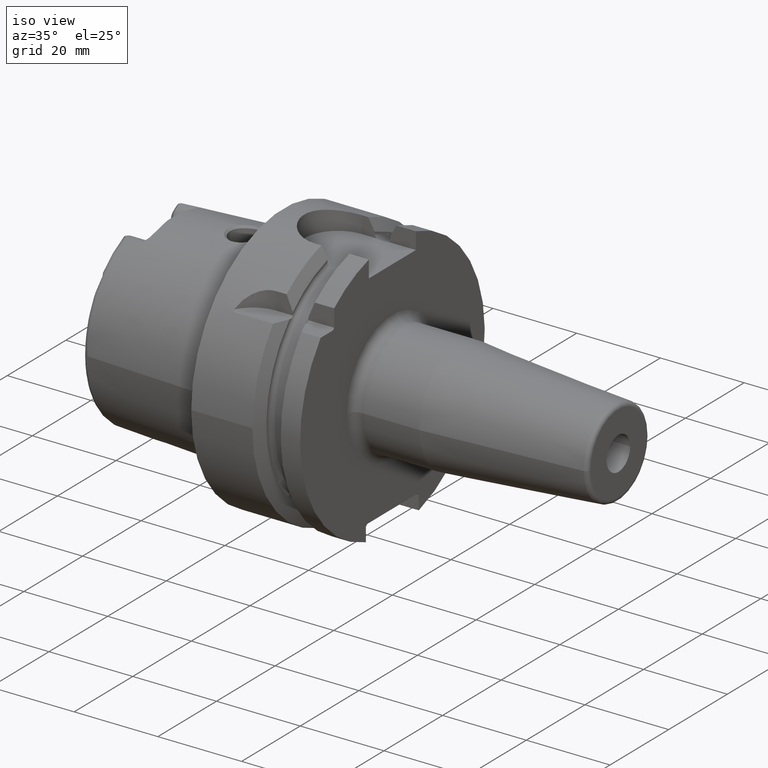
[diagram: clean part render]
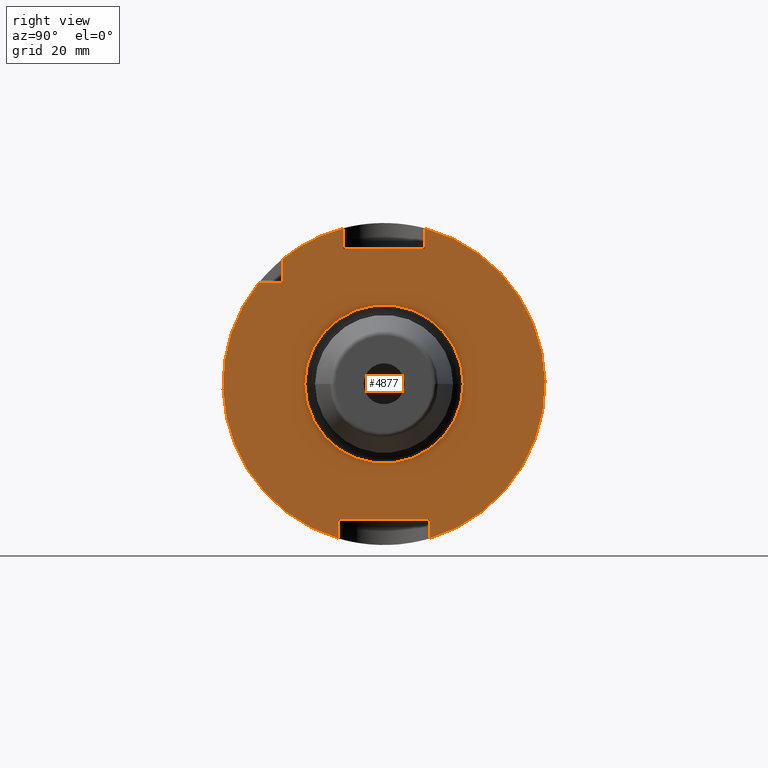
[diagram: tour spotlight — one face highlighted and labeled with its STEP entity id]
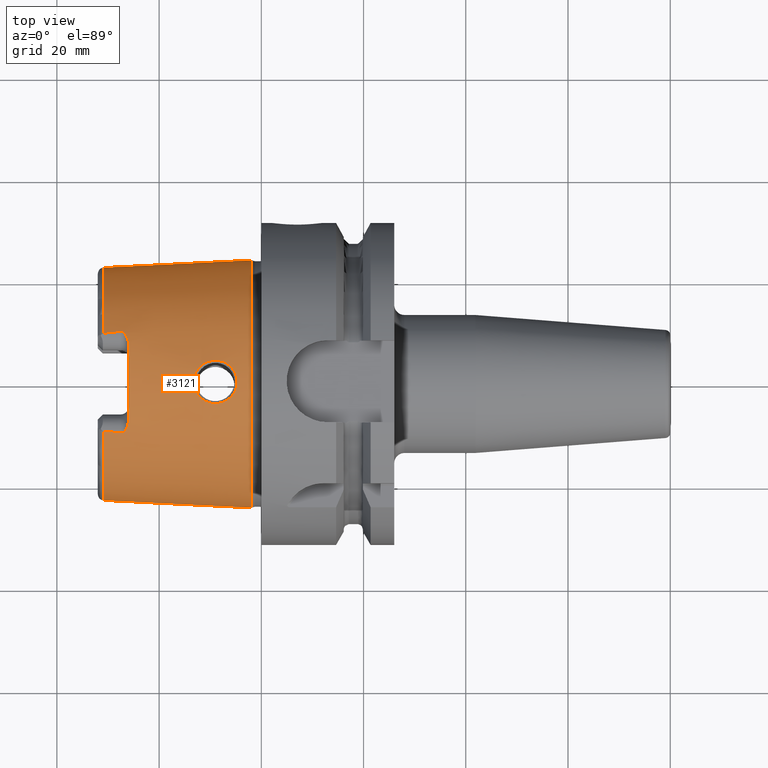
[diagram: tour spotlight — one face highlighted and labeled with its STEP entity id]
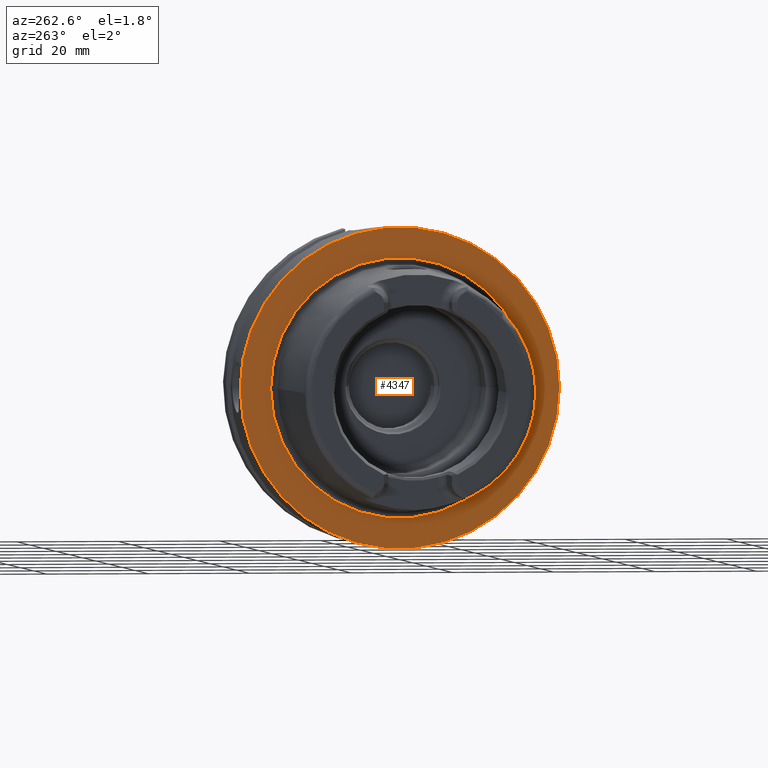
[diagram: tour spotlight — one face highlighted and labeled with its STEP entity id]
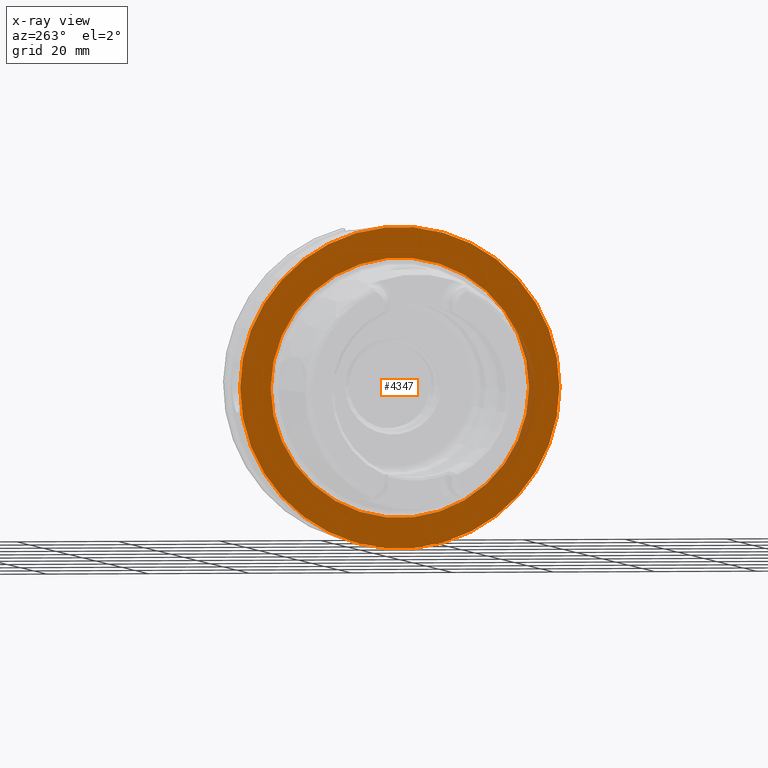
[diagram: x-ray of the same camera — body ghosted, this tour face saturated]
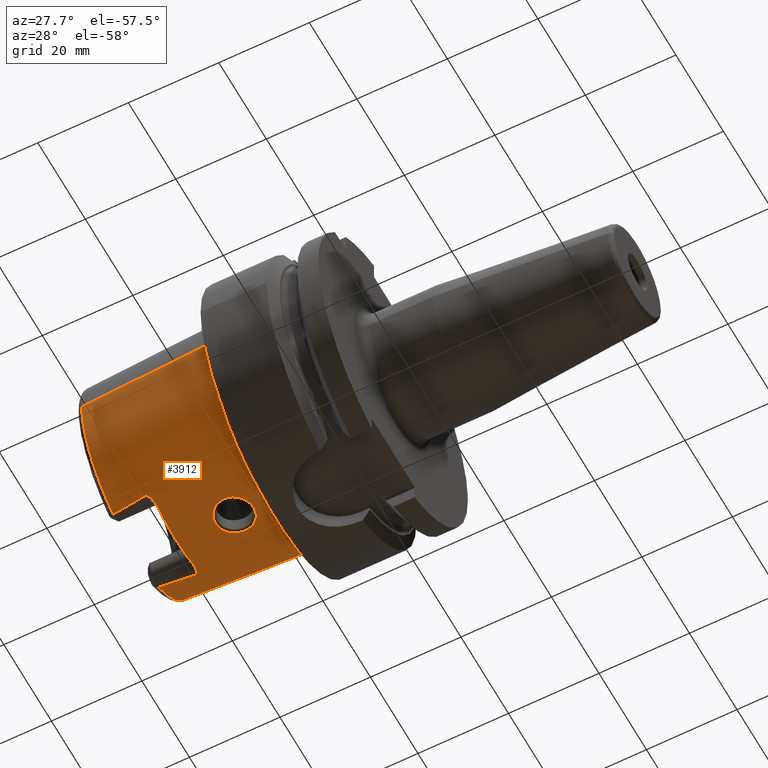
[diagram: tour spotlight — one face highlighted and labeled with its STEP entity id]
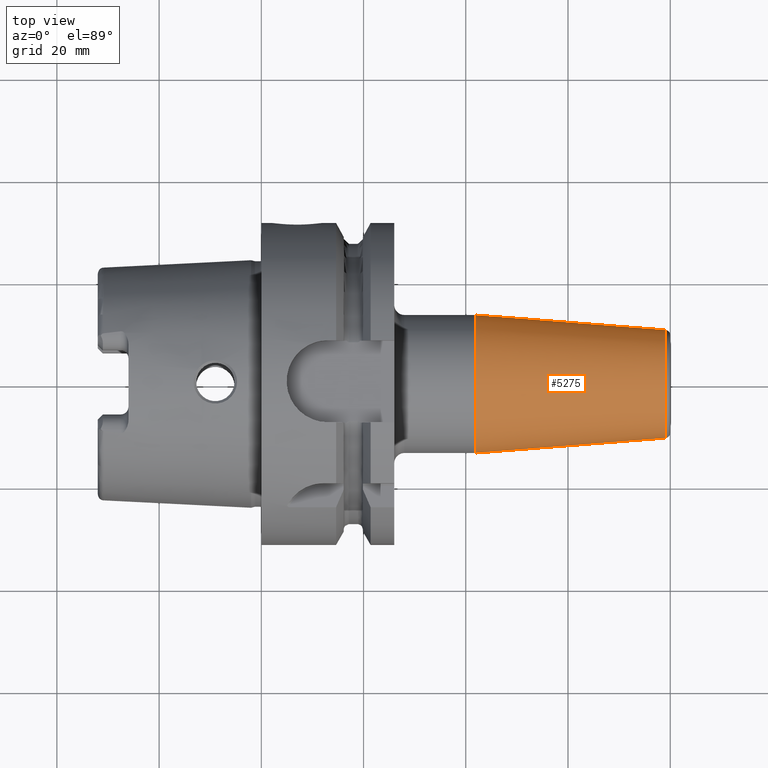
[diagram: tour spotlight — one face highlighted and labeled with its STEP entity id]
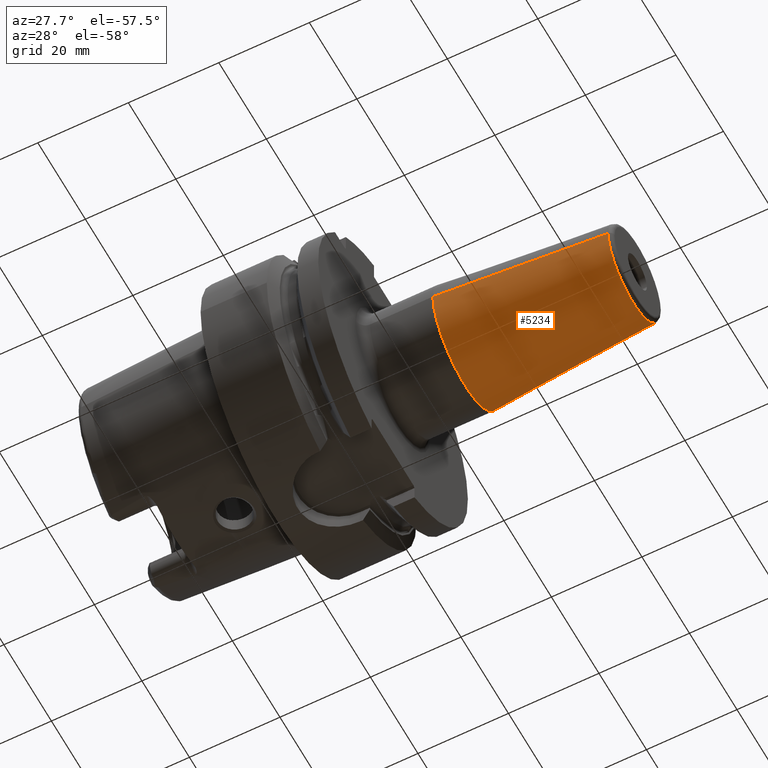
[diagram: tour spotlight — one face highlighted and labeled with its STEP entity id]
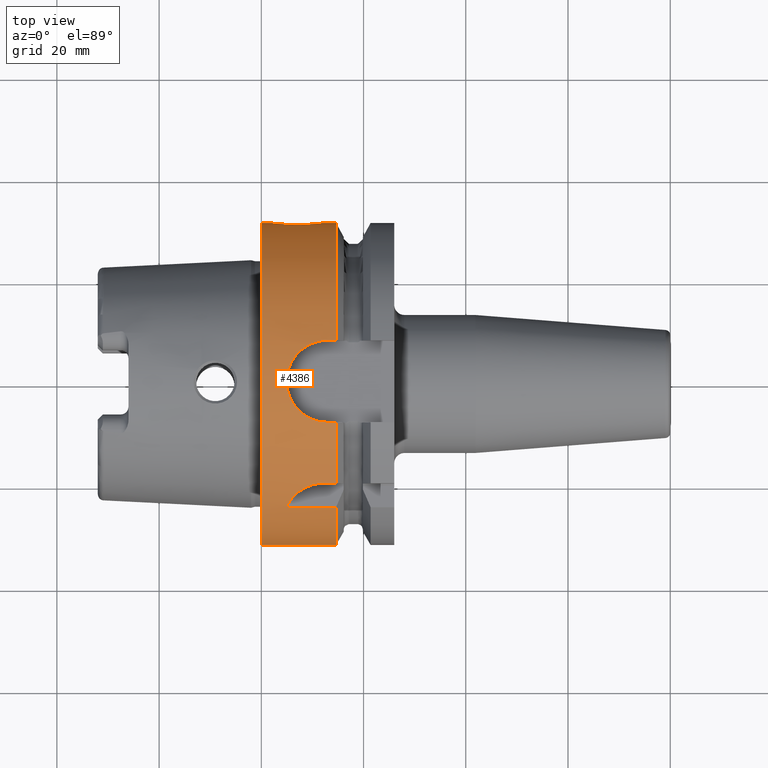
[diagram: tour spotlight — one face highlighted and labeled with its STEP entity id]
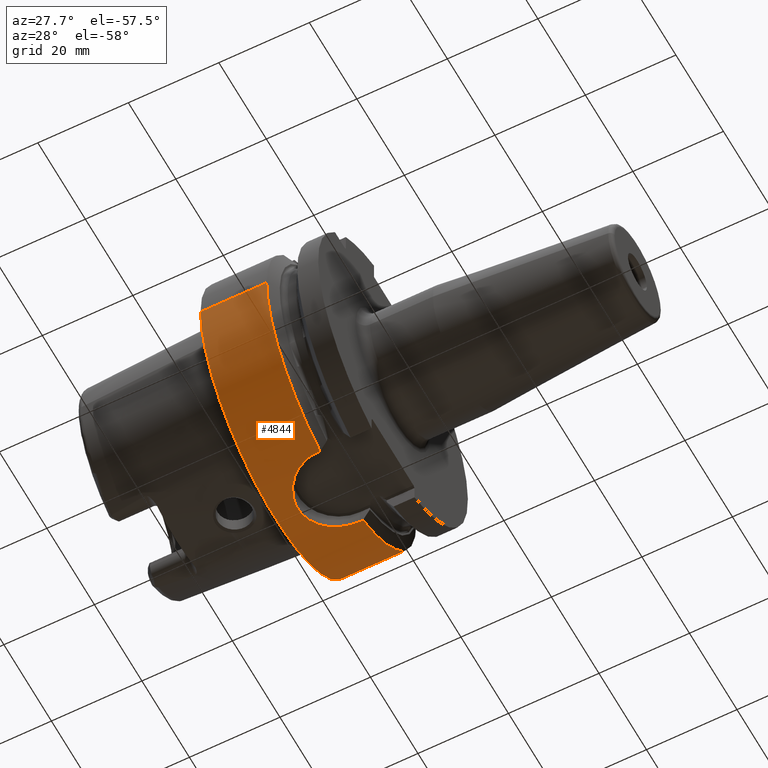
[diagram: tour spotlight — one face highlighted and labeled with its STEP entity id]
A machine part: a face-by-face anatomy tour. The part has 173 B-rep faces; the first image is the clean iso view, then the 8 largest visible faces are spotlighted one at a time (largest first), each with its STEP entity span.

Face 1 — right view, entity #4877. In plain terms, the highlighted planar face has unit normal (1, 0, 0).
Definition (entity closure, byte-faithful):
#1343=DIRECTION('',(0.E0,7.071067811865E-1,-7.071067811866E-1));
#1344=VECTOR('',#1343,5.656854249492E-1);
#1345=CARTESIAN_POINT('',(2.6E1,8.6175E0,-2.64E1));
#1346=LINE('',#1345,#1344);
#1565=CARTESIAN_POINT('',(2.6E1,0.E0,0.E0));
#1566=DIRECTION('',(1.E0,0.E0,0.E0));
#1567=DIRECTION('',(0.E0,2.862698412698E-1,-9.581490374568E-1));
#1568=AXIS2_PLACEMENT_3D('',#1565,#1566,#1567);
#1574=CARTESIAN_POINT('',(2.6E1,0.E0,0.E0));
#1575=DIRECTION('',(1.E0,0.E0,0.E0));
#1576=DIRECTION('',(0.E0,-7.764663384879E-1,6.301587301587E-1));
#1577=AXIS2_PLACEMENT_3D('',#1574,#1575,#1576);
#1583=CARTESIAN_POINT('',(2.6E1,0.E0,0.E0));
#1584=DIRECTION('',(1.E0,0.E0,0.E0));
#1585=DIRECTION('',(0.E0,-2.545238095238E-1,9.670665077364E-1));
#1586=AXIS2_PLACEMENT_3D('',#1583,#1584,#1585);
#1676=DIRECTION('',(0.E0,1.E0,0.E0));
#1677=VECTOR('',#1676,4.208689662367E0);
#1678=CARTESIAN_POINT('',(2.6E1,-2.445868966237E1,1.985E1));
#1679=LINE('',#1678,#1677);
#1680=DIRECTION('',(0.E0,0.E0,-1.E0));
#1681=VECTOR('',#1680,4.208689662367E0);
#1682=CARTESIAN_POINT('',(2.6E1,-1.985E1,2.445868966237E1));
#1683=LINE('',#1682,#1681);
#1684=DIRECTION('',(0.E0,0.E0,-1.E0));
#1685=VECTOR('',#1684,4.062594993697E0);
#1686=CARTESIAN_POINT('',(2.6E1,-8.0175E0,3.046259499370E1));
#1687=LINE('',#1686,#1685);
#1688=DIRECTION('',(0.E0,1.E0,0.E0));
#1689=VECTOR('',#1688,1.6035E1);
#1690=CARTESIAN_POINT('',(2.6E1,-8.0175E0,2.64E1));
#1691=LINE('',#1690,#1689);
#1692=DIRECTION('',(0.E0,0.E0,-1.E0));
#1693=VECTOR('',#1692,4.062594993697E0);
#1694=CARTESIAN_POINT('',(2.6E1,8.0175E0,3.046259499370E1));
#1695=LINE('',#1694,#1693);
#1696=DIRECTION('',(0.E0,0.E0,1.E0));
#1697=VECTOR('',#1696,3.381694679888E0);
#1698=CARTESIAN_POINT('',(2.6E1,9.0175E0,-3.018169467989E1));
#1699=LINE('',#1698,#1697);
#1700=DIRECTION('',(0.E0,-1.E0,0.E0));
#1701=VECTOR('',#1700,1.7235E1);
#1702=CARTESIAN_POINT('',(2.6E1,8.6175E0,-2.64E1));
#1703=LINE('',#1702,#1701);
#1704=DIRECTION('',(0.E0,0.E0,1.E0));
#1705=VECTOR('',#1704,3.381694679888E0);
#1706=CARTESIAN_POINT('',(2.6E1,-9.0175E0,-3.018169467989E1));
#1707=LINE('',#1706,#1705);
#1708=CARTESIAN_POINT('',(2.6E1,0.E0,0.E0));
#1709=DIRECTION('',(1.E0,0.E0,0.E0));
#1710=DIRECTION('',(0.E0,-1.E0,0.E0));
#1711=AXIS2_PLACEMENT_3D('',#1708,#1709,#1710);
#1713=CARTESIAN_POINT('',(2.6E1,0.E0,0.E0));
#1714=DIRECTION('',(1.E0,0.E0,0.E0));
#1715=DIRECTION('',(0.E0,1.E0,0.E0));
#1716=AXIS2_PLACEMENT_3D('',#1713,#1714,#1715);
#1737=DIRECTION('',(0.E0,-7.071067811865E-1,-7.071067811865E-1));
#1738=VECTOR('',#1737,5.656854249492E-1);
#1739=CARTESIAN_POINT('',(2.6E1,-1.985E1,2.025E1));
#1740=LINE('',#1739,#1738);
#1857=DIRECTION('',(0.E0,7.071067811865E-1,7.071067811865E-1));
#1858=VECTOR('',#1857,5.656854249492E-1);
#1859=CARTESIAN_POINT('',(2.6E1,-9.0175E0,-2.68E1));
#1860=LINE('',#1859,#1858);
#2917=CARTESIAN_POINT('',(2.6E1,8.6175E0,-2.64E1));
#2918=CARTESIAN_POINT('',(2.6E1,9.0175E0,-2.68E1));
#2919=VERTEX_POINT('',#2917);
#2920=VERTEX_POINT('',#2918);
#2921=CARTESIAN_POINT('',(2.6E1,-9.0175E0,-2.68E1));
#2922=CARTESIAN_POINT('',(2.6E1,-8.6175E0,-2.64E1));
#2923=VERTEX_POINT('',#2921);
#2924=VERTEX_POINT('',#2922);
#2939=CARTESIAN_POINT('',(2.6E1,-1.985E1,2.025E1));
#2940=CARTESIAN_POINT('',(2.6E1,-2.025E1,1.985E1));
#2941=VERTEX_POINT('',#2939);
#2942=VERTEX_POINT('',#2940);
#2958=CARTESIAN_POINT('',(2.6E1,-8.0175E0,2.64E1));
#2960=VERTEX_POINT('',#2958);
#2961=CARTESIAN_POINT('',(2.6E1,8.0175E0,2.64E1));
#2963=VERTEX_POINT('',#2961);
#3021=CARTESIAN_POINT('',(2.6E1,9.0175E0,-3.018169467989E1));
#3022=CARTESIAN_POINT('',(2.6E1,8.0175E0,3.046259499370E1));
#3023=VERTEX_POINT('',#3021);
#3024=VERTEX_POINT('',#3022);
#3028=CARTESIAN_POINT('',(2.6E1,-2.445868966237E1,1.985E1));
#3030=VERTEX_POINT('',#3028);
#3032=CARTESIAN_POINT('',(2.6E1,-1.985E1,2.445868966237E1));
#3034=VERTEX_POINT('',#3032);
#3052=CARTESIAN_POINT('',(2.6E1,-8.0175E0,3.046259499370E1));
#3053=VERTEX_POINT('',#3052);
#3054=CARTESIAN_POINT('',(2.6E1,-9.0175E0,-3.018169467989E1));
#3055=VERTEX_POINT('',#3054);
#3068=CARTESIAN_POINT('',(2.6E1,-1.55E1,0.E0));
#3069=CARTESIAN_POINT('',(2.6E1,1.55E1,0.E0));
#3070=VERTEX_POINT('',#3068);
#3071=VERTEX_POINT('',#3069);
#4845=CARTESIAN_POINT('',(2.6E1,0.E0,0.E0));
#4846=DIRECTION('',(1.E0,0.E0,0.E0));
#4847=DIRECTION('',(0.E0,-1.E0,0.E0));
#4848=AXIS2_PLACEMENT_3D('',#4845,#4846,#4847);
#4849=PLANE('',#4848);
#4851=ORIENTED_EDGE('',*,*,#4850,.T.);
#4853=ORIENTED_EDGE('',*,*,#4852,.F.);
#4855=ORIENTED_EDGE('',*,*,#4854,.F.);
#4856=ORIENTED_EDGE('',*,*,#4815,.F.);
#4857=ORIENTED_EDGE('',*,*,#4686,.T.);
#4858=ORIENTED_EDGE('',*,*,#4653,.T.);
#4859=ORIENTED_EDGE('',*,*,#4748,.F.);
#4860=ORIENTED_EDGE('',*,*,#4781,.F.);
#4861=ORIENTED_EDGE('',*,*,#4487,.T.);
#4862=ORIENTED_EDGE('',*,*,#4528,.F.);
#4863=ORIENTED_EDGE('',*,*,#4606,.T.);
#4865=ORIENTED_EDGE('',*,*,#4864,.F.);
#4867=ORIENTED_EDGE('',*,*,#4866,.F.);
#4868=ORIENTED_EDGE('',*,*,#4796,.F.);
#4869=EDGE_LOOP('',(#4851,#4853,#4855,#4856,#4857,#4858,#4859,#4860,#4861,#4862,
#4863,#4865,#4867,#4868));
#4870=FACE_OUTER_BOUND('',#4869,.F.);
#4872=ORIENTED_EDGE('',*,*,#4871,.T.);
#4874=ORIENTED_EDGE('',*,*,#4873,.T.);
#4875=EDGE_LOOP('',(#4872,#4874));
#4876=FACE_BOUND('',#4875,.F.);
#4877=ADVANCED_FACE('',(#4870,#4876),#4849,.T.);
#1569=CIRCLE('',#1568,3.15E1);
#1578=CIRCLE('',#1577,3.15E1);
#1587=CIRCLE('',#1586,3.15E1);
#1712=CIRCLE('',#1711,1.55E1);
#1717=CIRCLE('',#1716,1.55E1);
#4487=EDGE_CURVE('',#3023,#2920,#1699,.T.);
#4528=EDGE_CURVE('',#2919,#2920,#1346,.T.);
#4606=EDGE_CURVE('',#2919,#2924,#1703,.T.);
#4653=EDGE_CURVE('',#2960,#2963,#1691,.T.);
#4686=EDGE_CURVE('',#3053,#2960,#1687,.T.);
#4748=EDGE_CURVE('',#3024,#2963,#1695,.T.);
#4781=EDGE_CURVE('',#3023,#3024,#1569,.T.);
#4796=EDGE_CURVE('',#3030,#3055,#1578,.T.);
#4815=EDGE_CURVE('',#3053,#3034,#1587,.T.);
#4850=EDGE_CURVE('',#3030,#2942,#1679,.T.);
#4852=EDGE_CURVE('',#2941,#2942,#1740,.T.);
#4854=EDGE_CURVE('',#3034,#2941,#1683,.T.);
#4864=EDGE_CURVE('',#2923,#2924,#1860,.T.);
#4866=EDGE_CURVE('',#3055,#2923,#1707,.T.);
#4871=EDGE_CURVE('',#3070,#3071,#1712,.T.);
#4873=EDGE_CURVE('',#3071,#3070,#1717,.T.);

Face 2 — top view, entity #3121. In plain terms, the highlighted conical surface has half-angle 2.868 deg.
Definition (entity closure, byte-faithful):
#2=CARTESIAN_POINT('',(-3.086004306431E1,-9.562027931336E0,2.067E1));
#3=CARTESIAN_POINT('',(-3.049253157278E1,-9.605880711653E0,2.067E1));
#4=CARTESIAN_POINT('',(-2.975362396220E1,-9.693552821268E0,2.067E1));
#5=CARTESIAN_POINT('',(-2.863363692789E1,-9.824971306479E0,2.067E1));
#6=CARTESIAN_POINT('',(-2.787917629619E1,-9.912538799101E0,2.067E1));
#7=CARTESIAN_POINT('',(-2.75E1,-9.956312881929E0,2.067E1));
#9=CARTESIAN_POINT('',(-2.6E1,0.E0,0.E0));
#10=DIRECTION('',(1.E0,0.E0,0.E0));
#11=DIRECTION('',(0.E0,3.233021702202E-1,9.462957818415E-1));
#12=AXIS2_PLACEMENT_3D('',#9,#10,#11);
#14=CARTESIAN_POINT('',(-2.75E1,9.956312881929E0,2.067E1));
#15=CARTESIAN_POINT('',(-2.787916500946E1,9.912540102101E0,2.067E1));
#16=CARTESIAN_POINT('',(-2.863361059702E1,9.824974374327E0,2.067E1));
#17=CARTESIAN_POINT('',(-2.975359777716E1,9.693555915617E0,2.067E1));
#18=CARTESIAN_POINT('',(-3.049252035285E1,9.605882050456E0,2.067E1));
#19=CARTESIAN_POINT('',(-3.086004306431E1,9.562027931336E0,2.067E1));
#21=CARTESIAN_POINT('',(-2.E0,0.E0,0.E0));
#22=DIRECTION('',(1.E0,0.E0,0.E0));
#23=DIRECTION('',(0.E0,1.E0,0.E0));
#24=AXIS2_PLACEMENT_3D('',#21,#22,#23);
#26=CARTESIAN_POINT('',(-1.324941786023E1,-7.219004501044E-9,2.365679941218E1));
#27=CARTESIAN_POINT('',(-1.324962652857E1,2.128419836803E-1,2.365678895818E1));
#28=CARTESIAN_POINT('',(-1.321789572653E1,6.392154004916E-1,2.365279437370E1));
#29=CARTESIAN_POINT('',(-1.306583173353E1,1.295455377947E0,2.363353567605E1));
#30=CARTESIAN_POINT('',(-1.280774848226E1,1.924363159712E0,2.360322882883E1));
#31=CARTESIAN_POINT('',(-1.245682539685E1,2.498002640667E0,2.356658532007E1));
#32=CARTESIAN_POINT('',(-1.202590717647E1,3.003748276320E0,2.352875153285E1));
#33=CARTESIAN_POINT('',(-1.151587453193E1,3.440667161266E0,2.349418467003E1));
#34=CARTESIAN_POINT('',(-1.094488701051E1,3.790928519035E0,2.346872738592E1));
#35=CARTESIAN_POINT('',(-1.032606556195E1,4.047968073685E0,2.345686676513E1));
#36=CARTESIAN_POINT('',(-9.674487886290E0,4.205448144478E0,2.346208039452E1));
#37=CARTESIAN_POINT('',(-9.005382482159E0,4.259666064034E0,2.348629251751E1));
#38=CARTESIAN_POINT('',(-8.334406518885E0,4.208654245636E0,2.352972397238E1));
#39=CARTESIAN_POINT('',(-7.678583145358E0,4.052835118832E0,2.359064506703E1));
#40=CARTESIAN_POINT('',(-7.054746219975E0,3.795297178824E0,2.366546684138E1));
#41=CARTESIAN_POINT('',(-6.478384090661E0,3.441929617339E0,2.374909717224E1));
#42=CARTESIAN_POINT('',(-5.963720829785E0,2.998888105398E0,2.383556837714E1));
#43=CARTESIAN_POINT('',(-5.531697254110E0,2.487245477785E0,2.391660020727E1));
#44=CARTESIAN_POINT('',(-5.183622696567E0,1.910877761534E0,2.398748891792E1));
#45=CARTESIAN_POINT('',(-4.930520871648E0,1.285429316774E0,2.404215083473E1));
#46=CARTESIAN_POINT('',(-4.781592632661E0,6.352567731875E-1,2.407559904029E1));
#47=CARTESIAN_POINT('',(-4.750478792548E0,2.114683342023E-1,2.408258846670E1));
#48=CARTESIAN_POINT('',(-4.750585905229E0,7.197553449570E-9,2.408258310050E1));
#50=CARTESIAN_POINT('',(-4.750585905229E0,7.197553449570E-9,2.408258310050E1));
#51=CARTESIAN_POINT('',(-4.750395627959E0,-2.105069288240E-1,2.408259263313E1));
#52=CARTESIAN_POINT('',(-4.781309836194E0,-6.330630552620E-1,2.407566909301E1));
#53=CARTESIAN_POINT('',(-4.930068182376E0,-1.284334675678E0,2.404224817580E1));
#54=CARTESIAN_POINT('',(-5.183732271360E0,-1.911208248299E0,2.398746160179E1));
#55=CARTESIAN_POINT('',(-5.531554832014E0,-2.486758661206E0,2.391664059803E1));
#56=CARTESIAN_POINT('',(-5.960736101322E0,-2.995606004120E0,2.383611484308E1));
#57=CARTESIAN_POINT('',(-6.472413726219E0,-3.437431533938E0,2.375005151539E1));
#58=CARTESIAN_POINT('',(-7.047774921505E0,-3.791791568104E0,2.366638920783E1));
#59=CARTESIAN_POINT('',(-7.671990993959E0,-4.050736119112E0,2.359134441504E1));
#60=CARTESIAN_POINT('',(-8.327799970975E0,-4.207619640495E0,2.353024681340E1));
#61=CARTESIAN_POINT('',(-8.998662135271E0,-4.259680399888E0,2.348663216787E1));
#62=CARTESIAN_POINT('',(-9.668037445633E0,-4.206488328283E0,2.346222081393E1));
#63=CARTESIAN_POINT('',(-1.031990079178E1,-4.049961979503E0,2.345683302195E1));
#64=CARTESIAN_POINT('',(-1.093870323089E1,-3.794046262990E0,2.346853209808E1));
#65=CARTESIAN_POINT('',(-1.151051650685E1,-3.444658410973E0,2.349386945058E1));
#66=CARTESIAN_POINT('',(-1.202283712979E1,-3.007012911900E0,2.352850073603E1));
#67=CARTESIAN_POINT('',(-1.245609200384E1,-2.499248587590E0,2.356650362943E1));
#68=CARTESIAN_POINT('',(-1.280745559330E1,-1.924878595842E0,2.360319856514E1));
#69=CARTESIAN_POINT('',(-1.306526541006E1,-1.297000138509E0,2.363346880977E1));
#70=CARTESIAN_POINT('',(-1.321765204718E1,-6.412116938996E-1,2.365275767433E1));
#71=CARTESIAN_POINT('',(-1.324954460014E1,-2.136894906074E-1,2.365679306269E1));
#72=CARTESIAN_POINT('',(-1.324941786023E1,-7.219004501044E-9,2.365679941218E1));
#82=CARTESIAN_POINT('',(-2.651259296226E1,-9.27E0,2.104082891384E1));
#83=CARTESIAN_POINT('',(-2.655060528934E1,-9.340723960488E0,2.100758892059E1));
#84=CARTESIAN_POINT('',(-2.663038504623E1,-9.471838743333E0,2.094458948833E1));
#85=CARTESIAN_POINT('',(-2.676092291608E1,-9.637362323001E0,2.086163997968E1));
#86=CARTESIAN_POINT('',(-2.690131837165E1,-9.770899105642E0,2.079157611E1));
#87=CARTESIAN_POINT('',(-2.705226454993E1,-9.871852756963E0,2.073538687848E1));
#88=CARTESIAN_POINT('',(-2.720441776005E1,-9.934823835429E0,2.069678496112E1));
#89=CARTESIAN_POINT('',(-2.735189841416E1,-9.963277454574E0,2.067488149845E1));
#90=CARTESIAN_POINT('',(-2.745092740764E1,-9.961978077101E0,2.067E1));
#91=CARTESIAN_POINT('',(-2.75E1,-9.956312881929E0,2.067E1));
#93=CARTESIAN_POINT('',(-2.6E1,-7.441787718571E0,2.178189005860E1));
#94=CARTESIAN_POINT('',(-2.6E1,-7.574673232080E0,2.173648969253E1));
#95=CARTESIAN_POINT('',(-2.601813511197E1,-7.850865569829E0,2.163846841914E1));
#96=CARTESIAN_POINT('',(-2.610760114915E1,-8.297034966034E0,2.146679982993E1));
#97=CARTESIAN_POINT('',(-2.626559360892E1,-8.768529603152E0,2.127027062942E1));
#98=CARTESIAN_POINT('',(-2.642147165719E1,-9.100463955368E0,2.112051021193E1));
#99=CARTESIAN_POINT('',(-2.651259296226E1,-9.27E0,2.104082891384E1));
#185=CARTESIAN_POINT('',(-3.086004306431E1,0.E0,0.E0));
#186=DIRECTION('',(1.E0,0.E0,0.E0));
#187=DIRECTION('',(0.E0,1.E0,0.E0));
#188=AXIS2_PLACEMENT_3D('',#185,#186,#187);
#196=CARTESIAN_POINT('',(-3.086004306431E1,9.562027931336E0,2.067E1));
#261=CARTESIAN_POINT('',(-3.086004306431E1,0.E0,0.E0));
#262=DIRECTION('',(1.E0,0.E0,0.E0));
#263=DIRECTION('',(0.E0,-4.198553792210E-1,9.075910205259E-1));
#264=AXIS2_PLACEMENT_3D('',#261,#262,#263);
#457=CARTESIAN_POINT('',(-2.651259296226E1,9.27E0,2.104082891384E1));
#458=CARTESIAN_POINT('',(-2.642147038701E1,9.100461592138E0,2.112051132264E1));
#459=CARTESIAN_POINT('',(-2.626559126698E1,8.768524006326E0,2.127027307791E1));
#460=CARTESIAN_POINT('',(-2.610760038346E1,8.297031203136E0,2.146680127908E1));
#461=CARTESIAN_POINT('',(-2.601813556642E1,7.850867870131E0,2.163846753656E1));
#462=CARTESIAN_POINT('',(-2.6E1,7.574674433427E0,2.173648928209E1));
#463=CARTESIAN_POINT('',(-2.6E1,7.441787718571E0,2.178189005860E1));
#497=CARTESIAN_POINT('',(-2.75E1,9.956312881929E0,2.067E1));
#498=CARTESIAN_POINT('',(-2.745017853421E1,9.962064530943E0,2.067E1));
#499=CARTESIAN_POINT('',(-2.734992708669E1,9.963297705486E0,2.067498167063E1));
#500=CARTESIAN_POINT('',(-2.719976747307E1,9.933459927686E0,2.069769932459E1));
#501=CARTESIAN_POINT('',(-2.704939607884E1,9.870085988272E0,2.073638612523E1));
#502=CARTESIAN_POINT('',(-2.690048936387E1,9.770127639355E0,2.079198258623E1));
#503=CARTESIAN_POINT('',(-2.676049508867E1,9.636879759274E0,2.086188624037E1));
#504=CARTESIAN_POINT('',(-2.663016689843E1,9.471495400784E0,2.094475592633E1));
#505=CARTESIAN_POINT('',(-2.655053916050E1,9.340600924250E0,2.100764674716E1));
#506=CARTESIAN_POINT('',(-2.651259296226E1,9.27E0,2.104082891384E1));
#763=DIRECTION('',(-9.987474205320E-1,5.003588692862E-2,0.E0));
#764=VECTOR('',#763,2.889623789861E1);
#765=CARTESIAN_POINT('',(-2.E0,-2.422042414966E1,0.E0));
#766=LINE('',#765,#764);
#772=DIRECTION('',(-9.987474205320E-1,-5.003588692862E-2,0.E0));
#773=VECTOR('',#772,2.889623789861E1);
#774=CARTESIAN_POINT('',(-2.E0,2.422042414966E1,0.E0));
#775=LINE('',#774,#773);
#2632=CARTESIAN_POINT('',(-2.E0,2.422042414966E1,0.E0));
#2633=CARTESIAN_POINT('',(-2.E0,-2.422042414966E1,0.E0));
#2634=VERTEX_POINT('',#2632);
#2635=VERTEX_POINT('',#2633);
#2636=CARTESIAN_POINT('',(-3.086004306431E1,2.277457525750E1,0.E0));
#2637=VERTEX_POINT('',#2636);
#2638=CARTESIAN_POINT('',(-3.086004306431E1,-2.277457525750E1,0.E0));
#2639=VERTEX_POINT('',#2638);
#2677=VERTEX_POINT('',#196);
#2678=CARTESIAN_POINT('',(-3.086004306431E1,-9.562027931336E0,2.067E1));
#2679=VERTEX_POINT('',#2678);
#2689=CARTESIAN_POINT('',(-2.6E1,7.441787718571E0,2.178189005860E1));
#2690=VERTEX_POINT('',#2689);
#2693=CARTESIAN_POINT('',(-2.75E1,9.956312881929E0,2.067E1));
#2694=VERTEX_POINT('',#2693);
#2695=CARTESIAN_POINT('',(-2.6E1,-7.441787718571E0,2.178189005860E1));
#2696=VERTEX_POINT('',#2695);
#2699=CARTESIAN_POINT('',(-2.75E1,-9.956312881929E0,2.067E1));
#2700=VERTEX_POINT('',#2699);
#2701=VERTEX_POINT('',#506);
#2702=VERTEX_POINT('',#82);
#2843=VERTEX_POINT('',#26);
#2844=VERTEX_POINT('',#48);
#3084=CARTESIAN_POINT('',(-1.643002153216E1,0.E0,0.E0));
#3085=DIRECTION('',(1.E0,0.E0,0.E0));
#3086=DIRECTION('',(0.E0,-1.E0,0.E0));
#3087=AXIS2_PLACEMENT_3D('',#3084,#3085,#3086);
#3088=CONICAL_SURFACE('',#3087,2.349749970358E1,2.868042729042E0);
#3090=ORIENTED_EDGE('',*,*,#3089,.T.);
#3092=ORIENTED_EDGE('',*,*,#3091,.F.);
#3094=ORIENTED_EDGE('',*,*,#3093,.F.);
#3096=ORIENTED_EDGE('',*,*,#3095,.F.);
#3098=ORIENTED_EDGE('',*,*,#3097,.F.);
#3100=ORIENTED_EDGE('',*,*,#3099,.F.);
#3102=ORIENTED_EDGE('',*,*,#3101,.T.);
#3104=ORIENTED_EDGE('',*,*,#3103,.F.);
#3106=ORIENTED_EDGE('',*,*,#3105,.F.);
#3108=ORIENTED_EDGE('',*,*,#3107,.T.);
#3110=ORIENTED_EDGE('',*,*,#3109,.T.);
#3112=ORIENTED_EDGE('',*,*,#3111,.F.);
#3113=EDGE_LOOP('',(#3090,#3092,#3094,#3096,#3098,#3100,#3102,#3104,#3106,#3108,
#3110,#3112));
#3114=FACE_OUTER_BOUND('',#3113,.F.);
#3116=ORIENTED_EDGE('',*,*,#3115,.F.);
#3118=ORIENTED_EDGE('',*,*,#3117,.F.);
#3119=EDGE_LOOP('',(#3116,#3118));
#3120=FACE_BOUND('',#3119,.F.);
#3121=ADVANCED_FACE('',(#3114,#3120),#3088,.T.);
#8=B_SPLINE_CURVE_WITH_KNOTS('',3,(#2,#3,#4,#5,#6,#7),.UNSPECIFIED.,.F.,.F.,(4,
1,1,4),(0.E0,3.333333333333E-1,6.666666666667E-1,1.E0),.UNSPECIFIED.);
#13=CIRCLE('',#12,2.301805680272E1);
#20=B_SPLINE_CURVE_WITH_KNOTS('',3,(#14,#15,#16,#17,#18,#19),.UNSPECIFIED.,.F.,
.F.,(4,1,1,4),(0.E0,3.333333333333E-1,6.666666666667E-1,1.E0),.UNSPECIFIED.);
#25=CIRCLE('',#24,2.422042414966E1);
#49=B_SPLINE_CURVE_WITH_KNOTS('',3,(#26,#27,#28,#29,#30,#31,#32,#33,#34,#35,#36,
#37,#38,#39,#40,#41,#42,#43,#44,#45,#46,#47,#48),.UNSPECIFIED.,.F.,.F.,(4,1,1,1,
1,1,1,1,1,1,1,1,1,1,1,1,1,1,1,1,4),(0.E0,5.E-2,1.E-1,1.5E-1,2.E-1,2.5E-1,3.E-1,
3.5E-1,4.E-1,4.5E-1,5.E-1,5.5E-1,6.E-1,6.5E-1,7.E-1,7.5E-1,8.E-1,8.5E-1,9.E-1,
9.5E-1,1.E0),.UNSPECIFIED.);
#73=B_SPLINE_CURVE_WITH_KNOTS('',3,(#50,#51,#52,#53,#54,#55,#56,#57,#58,#59,#60,
#61,#62,#63,#64,#65,#66,#67,#68,#69,#70,#71,#72),.UNSPECIFIED.,.F.,.F.,(4,1,1,1,
1,1,1,1,1,1,1,1,1,1,1,1,1,1,1,1,4),(0.E0,5.E-2,1.E-1,1.5E-1,2.E-1,2.5E-1,3.E-1,
3.5E-1,4.E-1,4.5E-1,5.E-1,5.5E-1,6.E-1,6.5E-1,7.E-1,7.5E-1,8.E-1,8.5E-1,9.E-1,
9.5E-1,1.E0),.UNSPECIFIED.);
#92=B_SPLINE_CURVE_WITH_KNOTS('',3,(#82,#83,#84,#85,#86,#87,#88,#89,#90,#91),
.UNSPECIFIED.,.F.,.F.,(4,1,1,1,1,1,1,4),(0.E0,1.428571428571E-1,
2.857142857143E-1,4.285714285714E-1,5.714285714286E-1,7.142857142857E-1,
8.571428571429E-1,1.E0),.UNSPECIFIED.);
#100=B_SPLINE_CURVE_WITH_KNOTS('',3,(#93,#94,#95,#96,#97,#98,#99),.UNSPECIFIED.,
.F.,.F.,(4,1,1,1,4),(0.E0,2.5E-1,5.E-1,7.5E-1,1.E0),.UNSPECIFIED.);
#189=CIRCLE('',#188,2.277457525750E1);
#265=CIRCLE('',#264,2.277457525750E1);
#464=B_SPLINE_CURVE_WITH_KNOTS('',3,(#457,#458,#459,#460,#461,#462,#463),
.UNSPECIFIED.,.F.,.F.,(4,1,1,1,4),(0.E0,2.5E-1,5.E-1,7.5E-1,1.E0),
.UNSPECIFIED.);
#507=B_SPLINE_CURVE_WITH_KNOTS('',3,(#497,#498,#499,#500,#501,#502,#503,#504,
#505,#506),.UNSPECIFIED.,.F.,.F.,(4,1,1,1,1,1,1,4),(0.E0,1.428571428571E-1,
2.857142857143E-1,4.285714285714E-1,5.714285714286E-1,7.142857142857E-1,
8.571428571429E-1,1.E0),.UNSPECIFIED.);
#3089=EDGE_CURVE('',#2679,#2700,#8,.T.);
#3091=EDGE_CURVE('',#2702,#2700,#92,.T.);
#3093=EDGE_CURVE('',#2696,#2702,#100,.T.);
#3095=EDGE_CURVE('',#2690,#2696,#13,.T.);
#3097=EDGE_CURVE('',#2701,#2690,#464,.T.);
#3099=EDGE_CURVE('',#2694,#2701,#507,.T.);
#3101=EDGE_CURVE('',#2694,#2677,#20,.T.);
#3103=EDGE_CURVE('',#2637,#2677,#189,.T.);
#3105=EDGE_CURVE('',#2634,#2637,#775,.T.);
#3107=EDGE_CURVE('',#2634,#2635,#25,.T.);
#3109=EDGE_CURVE('',#2635,#2639,#766,.T.);
#3111=EDGE_CURVE('',#2679,#2639,#265,.T.);
#3115=EDGE_CURVE('',#2843,#2844,#49,.T.);
#3117=EDGE_CURVE('',#2844,#2843,#73,.T.);

Face 3 — auxiliary view, entity #4347. An x-ray twin of the same camera follows (body ghosted, this face saturated) — the face is partly hidden behind the body. In plain terms, the highlighted planar face has unit normal (1, 0, 0).
Definition (entity closure, byte-faithful):
#1068=CARTESIAN_POINT('',(-1.421085471520E-14,0.E0,0.E0));
#1069=DIRECTION('',(1.E0,0.E0,0.E0));
#1070=DIRECTION('',(0.E0,1.E0,0.E0));
#1071=AXIS2_PLACEMENT_3D('',#1068,#1069,#1070);
#1073=CARTESIAN_POINT('',(-1.421085471520E-14,0.E0,0.E0));
#1074=DIRECTION('',(-1.E0,0.E0,0.E0));
#1075=DIRECTION('',(0.E0,1.E0,0.E0));
#1076=AXIS2_PLACEMENT_3D('',#1073,#1074,#1075);
#1078=CARTESIAN_POINT('',(0.E0,0.E0,0.E0));
#1079=DIRECTION('',(-1.E0,0.E0,0.E0));
#1080=DIRECTION('',(0.E0,-1.E0,0.E0));
#1081=AXIS2_PLACEMENT_3D('',#1078,#1079,#1080);
#1083=CARTESIAN_POINT('',(0.E0,0.E0,0.E0));
#1084=DIRECTION('',(-1.E0,0.E0,0.E0));
#1085=DIRECTION('',(0.E0,1.E0,0.E0));
#1086=AXIS2_PLACEMENT_3D('',#1083,#1084,#1085);
#2612=CARTESIAN_POINT('',(-1.421085471520E-14,3.15E1,0.E0));
#2613=CARTESIAN_POINT('',(-1.421085471520E-14,-3.15E1,0.E0));
#2614=VERTEX_POINT('',#2612);
#2615=VERTEX_POINT('',#2613);
#2640=CARTESIAN_POINT('',(0.E0,-2.549042414966E1,0.E0));
#2641=VERTEX_POINT('',#2640);
#2642=CARTESIAN_POINT('',(0.E0,2.549042414966E1,0.E0));
#2643=VERTEX_POINT('',#2642);
#4332=CARTESIAN_POINT('',(0.E0,0.E0,0.E0));
#4333=DIRECTION('',(1.E0,0.E0,0.E0));
#4334=DIRECTION('',(0.E0,-1.E0,0.E0));
#4335=AXIS2_PLACEMENT_3D('',#4332,#4333,#4334);
#4336=PLANE('',#4335);
#4338=ORIENTED_EDGE('',*,*,#4337,.T.);
#4340=ORIENTED_EDGE('',*,*,#4339,.F.);
#4341=EDGE_LOOP('',(#4338,#4340));
#4342=FACE_OUTER_BOUND('',#4341,.F.);
#4343=ORIENTED_EDGE('',*,*,#4327,.T.);
#4344=ORIENTED_EDGE('',*,*,#4311,.T.);
#4345=EDGE_LOOP('',(#4343,#4344));
#4346=FACE_BOUND('',#4345,.F.);
#4347=ADVANCED_FACE('',(#4342,#4346),#4336,.F.);
#1072=CIRCLE('',#1071,3.15E1);
#1077=CIRCLE('',#1076,3.15E1);
#1082=CIRCLE('',#1081,2.549042414966E1);
#1087=CIRCLE('',#1086,2.549042414966E1);
#4311=EDGE_CURVE('',#2643,#2641,#1087,.T.);
#4327=EDGE_CURVE('',#2641,#2643,#1082,.T.);
#4337=EDGE_CURVE('',#2614,#2615,#1072,.T.);
#4339=EDGE_CURVE('',#2614,#2615,#1077,.T.);

Face 4 — auxiliary view, entity #3912. In plain terms, the highlighted conical surface has half-angle 2.868 deg.
Definition (entity closure, byte-faithful):
#172=CARTESIAN_POINT('',(-3.086004306431E1,9.562027931336E0,-2.067E1));
#180=CARTESIAN_POINT('',(-3.086004306431E1,0.E0,0.E0));
#181=DIRECTION('',(-1.E0,0.E0,0.E0));
#182=DIRECTION('',(0.E0,1.E0,0.E0));
#183=AXIS2_PLACEMENT_3D('',#180,#181,#182);
#266=CARTESIAN_POINT('',(-3.086004306431E1,0.E0,0.E0));
#267=DIRECTION('',(-1.E0,0.E0,0.E0));
#268=DIRECTION('',(0.E0,-4.198553792210E-1,-9.075910205259E-1));
#269=AXIS2_PLACEMENT_3D('',#266,#267,#268);
#715=CARTESIAN_POINT('',(-2.35E1,-1.040978349090E1,-2.067E1));
#716=CARTESIAN_POINT('',(-2.344355022851E1,-1.041607090076E1,-2.067E1));
#717=CARTESIAN_POINT('',(-2.332956993861E1,-1.041630964332E1,
-2.067627649687E1));
#718=CARTESIAN_POINT('',(-2.315431779142E1,-1.037517685704E1,
-2.070680447798E1));
#719=CARTESIAN_POINT('',(-2.298610382819E1,-1.029332142770E1,
-2.075709446100E1));
#720=CARTESIAN_POINT('',(-2.282168004898E1,-1.016791062235E1,
-2.082809580409E1));
#721=CARTESIAN_POINT('',(-2.266724538325E1,-9.999284585470E0,
-2.091827708343E1));
#722=CARTESIAN_POINT('',(-2.252949651780E1,-9.795860386621E0,
-2.102205159226E1));
#723=CARTESIAN_POINT('',(-2.240609239614E1,-9.556317791147E0,
-2.113897791639E1));
#724=CARTESIAN_POINT('',(-2.233295118151E1,-9.369771312934E0,
-2.122596447282E1));
#725=CARTESIAN_POINT('',(-2.229902715702E1,-9.27E0,-2.127129858661E1));
#732=CARTESIAN_POINT('',(-2.229902715702E1,-9.27E0,-2.127129858661E1));
#733=CARTESIAN_POINT('',(-2.223399395074E1,-9.078735889296E0,
-2.135820522042E1));
#734=CARTESIAN_POINT('',(-2.212138063131E1,-8.709703982970E0,
-2.151897497246E1));
#735=CARTESIAN_POINT('',(-2.202143095510E1,-8.195867731278E0,
-2.172483116732E1));
#736=CARTESIAN_POINT('',(-2.2E1,-7.876905772307E0,-2.184209600703E1));
#737=CARTESIAN_POINT('',(-2.2E1,-7.723914364163E0,-2.189606426911E1));
#744=CARTESIAN_POINT('',(-3.086004306431E1,9.562027931336E0,-2.067E1));
#745=CARTESIAN_POINT('',(-3.006933576531E1,9.656377942908E0,-2.067E1));
#746=CARTESIAN_POINT('',(-2.846987211493E1,9.844931102331E0,-2.067E1));
#747=CARTESIAN_POINT('',(-2.601704943476E1,1.012739619931E1,-2.067E1));
#748=CARTESIAN_POINT('',(-2.434508424921E1,1.031565749353E1,-2.067E1));
#749=CARTESIAN_POINT('',(-2.35E1,1.040978349090E1,-2.067E1));
#751=CARTESIAN_POINT('',(-2.2E1,0.E0,0.E0));
#752=DIRECTION('',(1.E0,0.E0,0.E0));
#753=DIRECTION('',(0.E0,-3.326627708379E-1,-9.430458530201E-1));
#754=AXIS2_PLACEMENT_3D('',#751,#752,#753);
#756=CARTESIAN_POINT('',(-2.35E1,-1.040978349090E1,-2.067E1));
#757=CARTESIAN_POINT('',(-2.434499363207E1,-1.031566758652E1,-2.067E1));
#758=CARTESIAN_POINT('',(-2.601683809497E1,-1.012742018211E1,-2.067E1));
#759=CARTESIAN_POINT('',(-2.846966522954E1,-9.844955281726E0,-2.067E1));
#760=CARTESIAN_POINT('',(-3.006924714753E1,-9.656388517097E0,-2.067E1));
#761=CARTESIAN_POINT('',(-3.086004306431E1,-9.562027931336E0,-2.067E1));
#763=DIRECTION('',(-9.987474205320E-1,5.003588692862E-2,0.E0));
#764=VECTOR('',#763,2.889623789861E1);
#765=CARTESIAN_POINT('',(-2.E0,-2.422042414966E1,0.E0));
#766=LINE('',#765,#764);
#767=CARTESIAN_POINT('',(-2.E0,0.E0,0.E0));
#768=DIRECTION('',(1.E0,0.E0,0.E0));
#769=DIRECTION('',(0.E0,-1.E0,0.E0));
#770=AXIS2_PLACEMENT_3D('',#767,#768,#769);
#772=DIRECTION('',(-9.987474205320E-1,-5.003588692862E-2,0.E0));
#773=VECTOR('',#772,2.889623789861E1);
#774=CARTESIAN_POINT('',(-2.E0,2.422042414966E1,0.E0));
#775=LINE('',#774,#773);
#776=CARTESIAN_POINT('',(-4.750586214018E0,5.673461659763E-9,
-2.408258339423E1));
#777=CARTESIAN_POINT('',(-4.750477437961E0,2.111411076152E-1,
-2.408258884376E1));
#778=CARTESIAN_POINT('',(-4.781495656806E0,6.343409338442E-1,
-2.407562144168E1));
#779=CARTESIAN_POINT('',(-4.930078657106E0,1.283914855647E0,-2.404224907910E1));
#780=CARTESIAN_POINT('',(-5.182634392381E0,1.908800454949E0,-2.398769888200E1));
#781=CARTESIAN_POINT('',(-5.529831450162E0,2.484539069761E0,-2.391697022480E1));
#782=CARTESIAN_POINT('',(-5.960551469368E0,2.995586150016E0,-2.383614077825E1));
#783=CARTESIAN_POINT('',(-6.473793439058E0,3.438507792172E0,-2.374982588457E1));
#784=CARTESIAN_POINT('',(-7.048787066123E0,3.792204015972E0,-2.366626747645E1));
#785=CARTESIAN_POINT('',(-7.671452269175E0,4.050490920343E0,-2.359141310307E1));
#786=CARTESIAN_POINT('',(-8.326498075054E0,4.207389863949E0,-2.353035449331E1));
#787=CARTESIAN_POINT('',(-8.996688113385E0,4.259622037115E0,-2.348674331493E1));
#788=CARTESIAN_POINT('',(-9.664449704733E0,4.206963769363E0,-2.346231724919E1));
#789=CARTESIAN_POINT('',(-1.031524077611E1,4.051442761029E0,-2.345681057565E1));
#790=CARTESIAN_POINT('',(-1.093485325951E1,3.796098039719E0,-2.346839797168E1));
#791=CARTESIAN_POINT('',(-1.150677686976E1,3.447081430360E0,-2.349368587605E1));
#792=CARTESIAN_POINT('',(-1.201610511114E1,3.013688514077E0,-2.352797212386E1));
#793=CARTESIAN_POINT('',(-1.245275273991E1,2.504280742997E0,-2.356616658718E1));
#794=CARTESIAN_POINT('',(-1.280634613041E1,1.927107192660E0,-2.360307496745E1));
#795=CARTESIAN_POINT('',(-1.306351718265E1,1.301776136825E0,-2.363325793045E1));
#796=CARTESIAN_POINT('',(-1.321667495617E1,6.483699009348E-1,
-2.365261938940E1));
#797=CARTESIAN_POINT('',(-1.324953338827E1,2.167159282651E-1,
-2.365680321669E1));
#798=CARTESIAN_POINT('',(-1.324940828071E1,6.149879737228E-9,
-2.365680948441E1));
#800=CARTESIAN_POINT('',(-1.324940828071E1,6.149879737228E-9,
-2.365680948441E1));
#801=CARTESIAN_POINT('',(-1.324953102801E1,-2.137481481882E-1,
-2.365680333493E1));
#802=CARTESIAN_POINT('',(-1.321763433537E1,-6.412975014817E-1,
-2.365274945467E1));
#803=CARTESIAN_POINT('',(-1.306535183772E1,-1.296633810944E0,
-2.363348136753E1));
#804=CARTESIAN_POINT('',(-1.280777805154E1,-1.924231879999E0,
-2.360323471178E1));
#805=CARTESIAN_POINT('',(-1.245640925213E1,-2.498853587660E0,
-2.356653312143E1));
#806=CARTESIAN_POINT('',(-1.202279775894E1,-3.007095564138E0,
-2.352849478770E1));
#807=CARTESIAN_POINT('',(-1.151012912941E1,-3.444950000041E0,
-2.349384632376E1));
#808=CARTESIAN_POINT('',(-1.093833543731E1,-3.794219313343E0,
-2.346852201482E1));
#809=CARTESIAN_POINT('',(-1.031975853695E1,-4.049996047184E0,
-2.345683414568E1));
#810=CARTESIAN_POINT('',(-9.668027880621E0,-4.206485188960E0,
-2.346222186835E1));
#811=CARTESIAN_POINT('',(-8.998732245580E0,-4.259676561364E0,
-2.348662929012E1));
#812=CARTESIAN_POINT('',(-8.327946517995E0,-4.207637743620E0,
-2.353023608986E1));
#813=CARTESIAN_POINT('',(-7.672280726344E0,-4.050816496641E0,
-2.359131552533E1));
#814=CARTESIAN_POINT('',(-7.048298445734E0,-3.792045808672E0,
-2.366632099982E1));
#815=CARTESIAN_POINT('',(-6.472887987830E0,-3.437795786313E0,
-2.374997505426E1));
#816=CARTESIAN_POINT('',(-5.960766318899E0,-2.995689730409E0,
-2.383610614678E1));
#817=CARTESIAN_POINT('',(-5.531187494687E0,-2.486290041474E0,
-2.391671147691E1));
#818=CARTESIAN_POINT('',(-5.183401261358E0,-1.910526594455E0,
-2.398753185570E1));
#819=CARTESIAN_POINT('',(-4.929997199649E0,-1.284003067748E0,
-2.404226458263E1));
#820=CARTESIAN_POINT('',(-4.781340780308E0,-6.332209723674E-1,
-2.407566103624E1));
#821=CARTESIAN_POINT('',(-4.750402434471E0,-2.105981632370E-1,
-2.408259260134E1));
#822=CARTESIAN_POINT('',(-4.750586214018E0,5.673461659763E-9,
-2.408258339423E1));
#832=CARTESIAN_POINT('',(-2.229902715702E1,9.27E0,-2.127129858661E1));
#833=CARTESIAN_POINT('',(-2.233311157770E1,9.370243041714E0,-2.122575012858E1));
#834=CARTESIAN_POINT('',(-2.240658425841E1,9.557497215840E0,-2.113842140416E1));
#835=CARTESIAN_POINT('',(-2.253041527230E1,9.797438074146E0,-2.102126542838E1));
#836=CARTESIAN_POINT('',(-2.266830373788E1,1.000064778809E1,-2.091756656395E1));
#837=CARTESIAN_POINT('',(-2.282373330426E1,1.017005110462E1,-2.082694270310E1));
#838=CARTESIAN_POINT('',(-2.299261366970E1,1.029790438197E1,-2.075446014923E1));
#839=CARTESIAN_POINT('',(-2.316533457542E1,1.037882348161E1,-2.070435505978E1));
#840=CARTESIAN_POINT('',(-2.333269177476E1,1.041609135758E1,-2.067621009348E1));
#841=CARTESIAN_POINT('',(-2.344467268621E1,1.041594588074E1,-2.067E1));
#842=CARTESIAN_POINT('',(-2.35E1,1.040978349090E1,-2.067E1));
#844=CARTESIAN_POINT('',(-2.2E1,7.723914364163E0,-2.189606426911E1));
#845=CARTESIAN_POINT('',(-2.2E1,7.876901135824E0,-2.184209764257E1));
#846=CARTESIAN_POINT('',(-2.202143124879E1,8.195856320393E0,-2.172483505793E1));
#847=CARTESIAN_POINT('',(-2.212136508173E1,8.709641843939E0,-2.151900085185E1));
#848=CARTESIAN_POINT('',(-2.223398514363E1,9.078709987396E0,-2.135821698973E1));
#849=CARTESIAN_POINT('',(-2.229902715702E1,9.27E0,-2.127129858661E1));
#2632=CARTESIAN_POINT('',(-2.E0,2.422042414966E1,0.E0));
#2633=CARTESIAN_POINT('',(-2.E0,-2.422042414966E1,0.E0));
#2634=VERTEX_POINT('',#2632);
#2635=VERTEX_POINT('',#2633);
#2636=CARTESIAN_POINT('',(-3.086004306431E1,2.277457525750E1,0.E0));
#2637=VERTEX_POINT('',#2636);
#2638=CARTESIAN_POINT('',(-3.086004306431E1,-2.277457525750E1,0.E0));
#2639=VERTEX_POINT('',#2638);
#2757=VERTEX_POINT('',#172);
#2759=CARTESIAN_POINT('',(-3.086004306431E1,-9.562027931336E0,-2.067E1));
#2760=VERTEX_POINT('',#2759);
#2763=CARTESIAN_POINT('',(-2.229902715702E1,-9.27E0,-2.127129858661E1));
#2765=VERTEX_POINT('',#2763);
#2766=VERTEX_POINT('',#737);
#2767=VERTEX_POINT('',#844);
#2768=VERTEX_POINT('',#849);
#2779=CARTESIAN_POINT('',(-2.35E1,-1.040978349090E1,-2.067E1));
#2780=VERTEX_POINT('',#2779);
#2781=CARTESIAN_POINT('',(-2.35E1,1.040978349090E1,-2.067E1));
#2782=VERTEX_POINT('',#2781);
#2847=VERTEX_POINT('',#776);
#2848=VERTEX_POINT('',#798);
#3882=CARTESIAN_POINT('',(-1.643002153216E1,0.E0,0.E0));
#3883=DIRECTION('',(1.E0,0.E0,0.E0));
#3884=DIRECTION('',(0.E0,-1.E0,0.E0));
#3885=AXIS2_PLACEMENT_3D('',#3882,#3883,#3884);
#3886=CONICAL_SURFACE('',#3885,2.349749970358E1,2.868042729042E0);
#3888=ORIENTED_EDGE('',*,*,#3887,.T.);
#3890=ORIENTED_EDGE('',*,*,#3889,.F.);
#3892=ORIENTED_EDGE('',*,*,#3891,.F.);
#3894=ORIENTED_EDGE('',*,*,#3893,.F.);
#3895=ORIENTED_EDGE('',*,*,#3872,.F.);
#3896=ORIENTED_EDGE('',*,*,#3861,.F.);
#3897=ORIENTED_EDGE('',*,*,#3848,.T.);
#3898=ORIENTED_EDGE('',*,*,#3251,.T.);
#3899=ORIENTED_EDGE('',*,*,#3109,.F.);
#3901=ORIENTED_EDGE('',*,*,#3900,.T.);
#3902=ORIENTED_EDGE('',*,*,#3105,.T.);
#3903=ORIENTED_EDGE('',*,*,#3223,.T.);
#3904=EDGE_LOOP('',(#3888,#3890,#3892,#3894,#3895,#3896,#3897,#3898,#3899,#3901,
#3902,#3903));
#3905=FACE_OUTER_BOUND('',#3904,.F.);
#3907=ORIENTED_EDGE('',*,*,#3906,.F.);
#3909=ORIENTED_EDGE('',*,*,#3908,.F.);
#3910=EDGE_LOOP('',(#3907,#3909));
#3911=FACE_BOUND('',#3910,.F.);
#3912=ADVANCED_FACE('',(#3905,#3911),#3886,.T.);
#184=CIRCLE('',#183,2.277457525750E1);
#270=CIRCLE('',#269,2.277457525750E1);
#726=B_SPLINE_CURVE_WITH_KNOTS('',3,(#715,#716,#717,#718,#719,#720,#721,#722,
#723,#724,#725),.UNSPECIFIED.,.F.,.F.,(4,1,1,1,1,1,1,1,4),(0.E0,1.25E-1,2.5E-1,
3.75E-1,5.E-1,6.25E-1,7.5E-1,8.75E-1,1.E0),.UNSPECIFIED.);
#738=B_SPLINE_CURVE_WITH_KNOTS('',3,(#732,#733,#734,#735,#736,#737),
.UNSPECIFIED.,.F.,.F.,(4,1,1,4),(0.E0,3.333333333333E-1,6.666666666667E-1,1.E0),
.UNSPECIFIED.);
#750=B_SPLINE_CURVE_WITH_KNOTS('',3,(#744,#745,#746,#747,#748,#749),
.UNSPECIFIED.,.F.,.F.,(4,1,1,4),(0.E0,3.333333333333E-1,6.666666666667E-1,1.E0),
.UNSPECIFIED.);
#755=CIRCLE('',#754,2.321845136054E1);
#762=B_SPLINE_CURVE_WITH_KNOTS('',3,(#756,#757,#758,#759,#760,#761),
.UNSPECIFIED.,.F.,.F.,(4,1,1,4),(0.E0,3.333333333333E-1,6.666666666667E-1,1.E0),
.UNSPECIFIED.);
#771=CIRCLE('',#770,2.422042414966E1);
#799=B_SPLINE_CURVE_WITH_KNOTS('',3,(#776,#777,#778,#779,#780,#781,#782,#783,
#784,#785,#786,#787,#788,#789,#790,#791,#792,#793,#794,#795,#796,#797,#798),
.UNSPECIFIED.,.F.,.F.,(4,1,1,1,1,1,1,1,1,1,1,1,1,1,1,1,1,1,1,1,4),(0.E0,5.E-2,
1.E-1,1.5E-1,2.E-1,2.5E-1,3.E-1,3.5E-1,4.E-1,4.5E-1,5.E-1,5.5E-1,6.E-1,6.5E-1,
7.E-1,7.5E-1,8.E-1,8.5E-1,9.E-1,9.5E-1,1.E0),.UNSPECIFIED.);
#823=B_SPLINE_CURVE_WITH_KNOTS('',3,(#800,#801,#802,#803,#804,#805,#806,#807,
#808,#809,#810,#811,#812,#813,#814,#815,#816,#817,#818,#819,#820,#821,#822),
.UNSPECIFIED.,.F.,.F.,(4,1,1,1,1,1,1,1,1,1,1,1,1,1,1,1,1,1,1,1,4),(0.E0,5.E-2,
1.E-1,1.5E-1,2.E-1,2.5E-1,3.E-1,3.5E-1,4.E-1,4.5E-1,5.E-1,5.5E-1,6.E-1,6.5E-1,
7.E-1,7.5E-1,8.E-1,8.5E-1,9.E-1,9.5E-1,1.E0),.UNSPECIFIED.);
#843=B_SPLINE_CURVE_WITH_KNOTS('',3,(#832,#833,#834,#835,#836,#837,#838,#839,
#840,#841,#842),.UNSPECIFIED.,.F.,.F.,(4,1,1,1,1,1,1,1,4),(0.E0,1.25E-1,2.5E-1,
3.75E-1,5.E-1,6.25E-1,7.5E-1,8.75E-1,1.E0),.UNSPECIFIED.);
#850=B_SPLINE_CURVE_WITH_KNOTS('',3,(#844,#845,#846,#847,#848,#849),
.UNSPECIFIED.,.F.,.F.,(4,1,1,4),(0.E0,3.333333333333E-1,6.666666666667E-1,1.E0),
.UNSPECIFIED.);
#3105=EDGE_CURVE('',#2634,#2637,#775,.T.);
#3109=EDGE_CURVE('',#2635,#2639,#766,.T.);
#3223=EDGE_CURVE('',#2637,#2757,#184,.T.);
#3251=EDGE_CURVE('',#2760,#2639,#270,.T.);
#3848=EDGE_CURVE('',#2780,#2760,#762,.T.);
#3861=EDGE_CURVE('',#2780,#2765,#726,.T.);
#3872=EDGE_CURVE('',#2765,#2766,#738,.T.);
#3887=EDGE_CURVE('',#2757,#2782,#750,.T.);
#3889=EDGE_CURVE('',#2768,#2782,#843,.T.);
#3891=EDGE_CURVE('',#2767,#2768,#850,.T.);
#3893=EDGE_CURVE('',#2766,#2767,#755,.T.);
#3900=EDGE_CURVE('',#2635,#2634,#771,.T.);
#3906=EDGE_CURVE('',#2847,#2848,#799,.T.);
#3908=EDGE_CURVE('',#2848,#2847,#823,.T.);

Face 5 — top view, entity #5275. In plain terms, the highlighted conical surface has half-angle 4.5 deg.
Definition (entity closure, byte-faithful):
#1971=CARTESIAN_POINT('',(4.188138579148E1,0.E0,0.E0));
#1972=DIRECTION('',(1.E0,0.E0,0.E0));
#1973=DIRECTION('',(0.E0,1.E0,0.E0));
#1974=AXIS2_PLACEMENT_3D('',#1971,#1972,#1973);
#1999=DIRECTION('',(-9.969173337331E-1,7.845909572785E-2,1.680973392547E-14));
#2000=VECTOR('',#1999,3.731209403789E1);
#2001=CARTESIAN_POINT('',(7.907845909573E1,1.057252684207E1,
-6.255530998003E-13));
#2002=LINE('',#2001,#2000);
#2003=DIRECTION('',(-9.969173337331E-1,-7.845909572785E-2,-1.673810819837E-14));
#2004=VECTOR('',#2003,3.731209403789E1);
#2005=CARTESIAN_POINT('',(7.907845909573E1,-1.057252684207E1,
6.228805939349E-13));
#2006=LINE('',#2005,#2004);
#2017=CARTESIAN_POINT('',(7.907845909573E1,0.E0,0.E0));
#2018=DIRECTION('',(-1.E0,0.E0,0.E0));
#2019=DIRECTION('',(0.E0,-1.E0,0.E0));
#2020=AXIS2_PLACEMENT_3D('',#2017,#2018,#2019);
#3064=CARTESIAN_POINT('',(4.188138579148E1,1.35E1,0.E0));
#3065=CARTESIAN_POINT('',(4.188138579148E1,-1.35E1,0.E0));
#3066=VERTEX_POINT('',#3064);
#3067=VERTEX_POINT('',#3065);
#3076=CARTESIAN_POINT('',(7.907845909573E1,1.057252684207E1,0.E0));
#3077=CARTESIAN_POINT('',(7.907845909573E1,-1.057252684207E1,0.E0));
#3078=VERTEX_POINT('',#3076);
#3079=VERTEX_POINT('',#3077);
#5264=CARTESIAN_POINT('',(6.047992244360E1,0.E0,0.E0));
#5265=DIRECTION('',(-1.E0,0.E0,0.E0));
#5266=DIRECTION('',(0.E0,1.E0,0.E0));
#5267=AXIS2_PLACEMENT_3D('',#5264,#5265,#5266);
#5268=CONICAL_SURFACE('',#5267,1.203626342104E1,4.5E0);
#5269=ORIENTED_EDGE('',*,*,#5255,.F.);
#5270=ORIENTED_EDGE('',*,*,#5230,.T.);
#5271=ORIENTED_EDGE('',*,*,#5200,.F.);
#5272=ORIENTED_EDGE('',*,*,#5227,.F.);
#5273=EDGE_LOOP('',(#5269,#5270,#5271,#5272));
#5274=FACE_OUTER_BOUND('',#5273,.F.);
#5275=ADVANCED_FACE('',(#5274),#5268,.T.);
#1975=CIRCLE('',#1974,1.35E1);
#2021=CIRCLE('',#2020,1.057252684207E1);
#5200=EDGE_CURVE('',#3066,#3067,#1975,.T.);
#5227=EDGE_CURVE('',#3078,#3066,#2002,.T.);
#5230=EDGE_CURVE('',#3079,#3067,#2006,.T.);
#5255=EDGE_CURVE('',#3079,#3078,#2021,.T.);

Face 6 — auxiliary view, entity #5234. In plain terms, the highlighted conical surface has half-angle 4.5 deg.
Definition (entity closure, byte-faithful):
#1985=CARTESIAN_POINT('',(4.188138579148E1,0.E0,0.E0));
#1986=DIRECTION('',(-1.E0,0.E0,0.E0));
#1987=DIRECTION('',(0.E0,1.E0,0.E0));
#1988=AXIS2_PLACEMENT_3D('',#1985,#1986,#1987);
#1994=CARTESIAN_POINT('',(7.907845909573E1,0.E0,0.E0));
#1995=DIRECTION('',(-1.E0,0.E0,0.E0));
#1996=DIRECTION('',(0.E0,1.E0,0.E0));
#1997=AXIS2_PLACEMENT_3D('',#1994,#1995,#1996);
#1999=DIRECTION('',(-9.969173337331E-1,7.845909572785E-2,1.680973392547E-14));
#2000=VECTOR('',#1999,3.731209403789E1);
#2001=CARTESIAN_POINT('',(7.907845909573E1,1.057252684207E1,
-6.255530998003E-13));
#2002=LINE('',#2001,#2000);
#2003=DIRECTION('',(-9.969173337331E-1,-7.845909572785E-2,-1.673810819837E-14));
#2004=VECTOR('',#2003,3.731209403789E1);
#2005=CARTESIAN_POINT('',(7.907845909573E1,-1.057252684207E1,
6.228805939349E-13));
#2006=LINE('',#2005,#2004);
#3064=CARTESIAN_POINT('',(4.188138579148E1,1.35E1,0.E0));
#3065=CARTESIAN_POINT('',(4.188138579148E1,-1.35E1,0.E0));
#3066=VERTEX_POINT('',#3064);
#3067=VERTEX_POINT('',#3065);
#3076=CARTESIAN_POINT('',(7.907845909573E1,1.057252684207E1,0.E0));
#3077=CARTESIAN_POINT('',(7.907845909573E1,-1.057252684207E1,0.E0));
#3078=VERTEX_POINT('',#3076);
#3079=VERTEX_POINT('',#3077);
#5220=CARTESIAN_POINT('',(6.047992244360E1,0.E0,0.E0));
#5221=DIRECTION('',(-1.E0,0.E0,0.E0));
#5222=DIRECTION('',(0.E0,1.E0,0.E0));
#5223=AXIS2_PLACEMENT_3D('',#5220,#5221,#5222);
#5224=CONICAL_SURFACE('',#5223,1.203626342104E1,4.5E0);
#5226=ORIENTED_EDGE('',*,*,#5225,.F.);
#5228=ORIENTED_EDGE('',*,*,#5227,.T.);
#5229=ORIENTED_EDGE('',*,*,#5214,.T.);
#5231=ORIENTED_EDGE('',*,*,#5230,.F.);
#5232=EDGE_LOOP('',(#5226,#5228,#5229,#5231));
#5233=FACE_OUTER_BOUND('',#5232,.F.);
#5234=ADVANCED_FACE('',(#5233),#5224,.T.);
#1989=CIRCLE('',#1988,1.35E1);
#1998=CIRCLE('',#1997,1.057252684207E1);
#5214=EDGE_CURVE('',#3066,#3067,#1989,.T.);
#5225=EDGE_CURVE('',#3078,#3079,#1998,.T.);
#5227=EDGE_CURVE('',#3078,#3066,#2002,.T.);
#5230=EDGE_CURVE('',#3079,#3067,#2006,.T.);

Face 7 — top view, entity #4386. In plain terms, the highlighted cylindrical surface (partial cylindrical patch) has radius 31.5 mm, axis along (1, 0, 0).
Definition (entity closure, byte-faithful):
#1068=CARTESIAN_POINT('',(-1.421085471520E-14,0.E0,0.E0));
#1069=DIRECTION('',(1.E0,0.E0,0.E0));
#1070=DIRECTION('',(0.E0,1.E0,0.E0));
#1071=AXIS2_PLACEMENT_3D('',#1068,#1069,#1070);
#1088=CARTESIAN_POINT('',(5.055280953939E0,-2.412856222307E1,2.025000071719E1));
#1089=CARTESIAN_POINT('',(5.203922975858E0,-2.384570309261E1,2.058703695930E1));
#1090=CARTESIAN_POINT('',(5.532173076798E0,-2.330389811185E1,2.120403265678E1));
#1091=CARTESIAN_POINT('',(6.096196943704E0,-2.257931058132E1,2.197133577912E1));
#1092=CARTESIAN_POINT('',(6.720663761460E0,-2.194020929485E1,2.260770262576E1));
#1093=CARTESIAN_POINT('',(7.403538650806E0,-2.138093627305E1,2.313587798030E1));
#1094=CARTESIAN_POINT('',(8.127595486115E0,-2.090969369163E1,2.356146143823E1));
#1095=CARTESIAN_POINT('',(8.885468985840E0,-2.052416799416E1,2.389720051652E1));
#1096=CARTESIAN_POINT('',(9.676498842341E0,-2.022243837463E1,2.415242961118E1));
#1097=CARTESIAN_POINT('',(1.047995851280E1,-2.000874678948E1,2.432931831120E1));
#1098=CARTESIAN_POINT('',(1.130639266309E1,-1.987868667877E1,2.443545312812E1));
#1099=CARTESIAN_POINT('',(1.185909309251E1,-1.985E1,2.445868966237E1));
#1100=CARTESIAN_POINT('',(1.213701040303E1,-1.985E1,2.445868966237E1));
#1102=DIRECTION('',(1.E0,2.905293196731E-8,-6.510821817001E-8));
#1103=VECTOR('',#1102,9.286887939886E0);
#1104=CARTESIAN_POINT('',(5.335612985355E0,-2.445868993218E1,1.985000060465E1));
#1105=LINE('',#1104,#1103);
#1106=CARTESIAN_POINT('',(1.462250092524E1,0.E0,0.E0));
#1107=DIRECTION('',(1.E0,0.E0,0.E0));
#1108=DIRECTION('',(0.E0,-7.764663384879E-1,6.301587301587E-1));
#1109=AXIS2_PLACEMENT_3D('',#1106,#1107,#1108);
#1111=CARTESIAN_POINT('',(7.E0,3.110064308017E1,5.E0));
#1112=CARTESIAN_POINT('',(6.762289362530E0,3.110064308017E1,5.E0));
#1113=CARTESIAN_POINT('',(6.291638752551E0,3.110604175503E1,4.966603315548E0));
#1114=CARTESIAN_POINT('',(5.590941042085E0,3.113002312530E1,4.815051890973E0));
#1115=CARTESIAN_POINT('',(4.922622791572E0,3.116768162346E1,4.566770855038E0));
#1116=CARTESIAN_POINT('',(4.290278046526E0,3.121652868953E1,4.222399367418E0));
#1117=CARTESIAN_POINT('',(3.717410291985E0,3.127184393545E1,3.794316921940E0));
#1118=CARTESIAN_POINT('',(3.206193230594E0,3.133001984817E1,3.283155949907E0));
#1119=CARTESIAN_POINT('',(2.778140338616E0,3.138511708835E1,2.710581430129E0));
#1120=CARTESIAN_POINT('',(2.433504878656E0,3.143364983629E1,2.077962340417E0));
#1121=CARTESIAN_POINT('',(2.185264531596E0,3.147092658786E1,1.410162050339E0));
#1122=CARTESIAN_POINT('',(2.033388478478E0,3.149467218381E1,7.086038393014E-1));
#1123=CARTESIAN_POINT('',(2.E0,3.15E1,2.377507523918E-1));
#1124=CARTESIAN_POINT('',(2.E0,3.15E1,-1.916034746595E-14));
#1126=CARTESIAN_POINT('',(1.2E1,3.15E1,0.E0));
#1127=CARTESIAN_POINT('',(1.2E1,3.15E1,2.377495474180E-1));
#1128=CARTESIAN_POINT('',(1.196662761645E1,3.149467458654E1,7.086186534272E-1));
#1129=CARTESIAN_POINT('',(1.181460579439E1,3.147090665108E1,1.410624843432E0));
#1130=CARTESIAN_POINT('',(1.156638499402E1,3.143363374637E1,2.078189492676E0));
#1131=CARTESIAN_POINT('',(1.122165706390E1,3.138508950965E1,2.710906952246E0));
#1132=CARTESIAN_POINT('',(1.079359615750E1,3.132999459490E1,3.283389066833E0));
#1133=CARTESIAN_POINT('',(1.028239612207E1,3.127182308878E1,3.794489355038E0));
#1134=CARTESIAN_POINT('',(9.709426385252E0,3.121650334061E1,4.222584855819E0));
#1135=CARTESIAN_POINT('',(9.077222790639E0,3.116767152827E1,4.566838108074E0));
#1136=CARTESIAN_POINT('',(8.408812552891E0,3.113001179404E1,4.815125199641E0));
#1137=CARTESIAN_POINT('',(7.708232303628E0,3.110603996499E1,4.966613968094E0));
#1138=CARTESIAN_POINT('',(7.237659908688E0,3.110064308017E1,5.E0));
#1139=CARTESIAN_POINT('',(7.E0,3.110064308017E1,5.E0));
#1141=CARTESIAN_POINT('',(1.462250092524E1,0.E0,0.E0));
#1142=DIRECTION('',(1.E0,0.E0,0.E0));
#1143=DIRECTION('',(0.E0,1.E0,0.E0));
#1144=AXIS2_PLACEMENT_3D('',#1141,#1142,#1143);
#1146=DIRECTION('',(1.E0,0.E0,0.E0));
#1147=VECTOR('',#1146,1.655000925241E0);
#1148=CARTESIAN_POINT('',(1.29675E1,8.0175E0,3.046259499370E1));
#1149=LINE('',#1148,#1147);
#1150=CARTESIAN_POINT('',(1.29675E1,-8.0175E0,3.046259499370E1));
#1151=CARTESIAN_POINT('',(1.262029466193E1,-8.0175E0,3.046259499370E1));
#1152=CARTESIAN_POINT('',(1.193292082029E1,-7.972856309682E0,3.047439785027E1));
#1153=CARTESIAN_POINT('',(1.091425902188E1,-7.773176787902E0,3.052624418591E1));
#1154=CARTESIAN_POINT('',(9.934126849983E0,-7.445404290975E0,3.060831570964E1));
#1155=CARTESIAN_POINT('',(9.004286205686E0,-6.994846174415E0,3.071501370342E1));
#1156=CARTESIAN_POINT('',(8.138619971222E0,-6.428343040649E0,3.083929437245E1));
#1157=CARTESIAN_POINT('',(7.341033244269E0,-5.744094981007E0,3.097488281900E1));
#1158=CARTESIAN_POINT('',(6.636610015904E0,-4.956823973346E0,3.111134005505E1));
#1159=CARTESIAN_POINT('',(6.043298615168E0,-4.087231355503E0,3.123817795333E1));
#1160=CARTESIAN_POINT('',(5.564354260648E0,-3.139626798488E0,3.134839057540E1));
#1161=CARTESIAN_POINT('',(5.208675508384E0,-2.115659667041E0,3.143476377212E1));
#1162=CARTESIAN_POINT('',(4.995564432998E0,-1.053473182399E0,3.148835416009E1));
#1163=CARTESIAN_POINT('',(4.927168873806E0,9.826508337445E-4,3.150583538732E1));
#1164=CARTESIAN_POINT('',(4.995760366771E0,1.054869977933E0,3.148830421554E1));
#1165=CARTESIAN_POINT('',(5.209100296272E0,2.117206961075E0,3.143465845843E1));
#1166=CARTESIAN_POINT('',(5.564768023101E0,3.140504656583E0,3.134829355759E1));
#1167=CARTESIAN_POINT('',(6.043465163200E0,4.087475455639E0,3.123814225608E1));
#1168=CARTESIAN_POINT('',(6.636650004810E0,4.956867733051E0,3.111133228169E1));
#1169=CARTESIAN_POINT('',(7.340978157719E0,5.744022439956E0,3.097489453754E1));
#1170=CARTESIAN_POINT('',(8.138191392118E0,6.427992830706E0,3.083936557780E1));
#1171=CARTESIAN_POINT('',(9.003473595842E0,6.994378480458E0,3.071512050332E1));
#1172=CARTESIAN_POINT('',(9.933336680083E0,7.445092599368E0,3.060839241432E1));
#1173=CARTESIAN_POINT('',(1.091365443769E1,7.773025904739E0,3.052628299010E1));
#1174=CARTESIAN_POINT('',(1.193250504209E1,7.972814414214E0,3.047440893684E1));
#1175=CARTESIAN_POINT('',(1.262014082393E1,8.0175E0,3.046259499370E1));
#1176=CARTESIAN_POINT('',(1.29675E1,8.0175E0,3.046259499370E1));
#1178=DIRECTION('',(1.E0,0.E0,0.E0));
#1179=VECTOR('',#1178,1.655000925241E0);
#1180=CARTESIAN_POINT('',(1.29675E1,-8.0175E0,3.046259499370E1));
#1181=LINE('',#1180,#1179);
#1182=CARTESIAN_POINT('',(1.462250092524E1,0.E0,0.E0));
#1183=DIRECTION('',(1.E0,0.E0,0.E0));
#1184=DIRECTION('',(0.E0,-2.545238095238E-1,9.670665077364E-1));
#1185=AXIS2_PLACEMENT_3D('',#1182,#1183,#1184);
#1187=DIRECTION('',(1.E0,0.E0,0.E0));
#1188=VECTOR('',#1187,2.485490522210E0);
#1189=CARTESIAN_POINT('',(1.213701040303E1,-1.985E1,2.445868966237E1));
#1190=LINE('',#1189,#1188);
#1200=CARTESIAN_POINT('',(5.335612985355E0,-2.445868993218E1,1.985000060465E1));
#1201=CARTESIAN_POINT('',(5.288536897563E0,-2.440508682723E1,1.991604905347E1));
#1202=CARTESIAN_POINT('',(5.194710350190E0,-2.429648646449E1,2.004876841892E1));
#1203=CARTESIAN_POINT('',(5.101613984819E0,-2.418502887122E1,2.018271879185E1));
#1204=CARTESIAN_POINT('',(5.055280953939E0,-2.412856222307E1,2.025000071719E1));
#1625=DIRECTION('',(-1.E0,0.E0,0.E0));
#1626=VECTOR('',#1625,2.622500925241E0);
#1627=CARTESIAN_POINT('',(1.462250092524E1,3.15E1,0.E0));
#1628=LINE('',#1627,#1626);
#1659=DIRECTION('',(-1.E0,0.E0,1.086605287208E-14));
#1660=VECTOR('',#1659,2.E0);
#1661=CARTESIAN_POINT('',(2.E0,3.15E1,-1.916034746595E-14));
#1662=LINE('',#1661,#1660);
#1663=DIRECTION('',(-1.E0,0.E0,0.E0));
#1664=VECTOR('',#1663,1.462250092524E1);
#1665=CARTESIAN_POINT('',(1.462250092524E1,-3.15E1,0.E0));
#1666=LINE('',#1665,#1664);
#1923=CARTESIAN_POINT('',(1.462250092524E1,-2.445868966237E1,1.985E1));
#2612=CARTESIAN_POINT('',(-1.421085471520E-14,3.15E1,0.E0));
#2613=CARTESIAN_POINT('',(-1.421085471520E-14,-3.15E1,0.E0));
#2614=VERTEX_POINT('',#2612);
#2615=VERTEX_POINT('',#2613);
#2833=CARTESIAN_POINT('',(1.462250092524E1,-3.15E1,0.E0));
#2834=VERTEX_POINT('',#2833);
#2859=CARTESIAN_POINT('',(7.E0,3.110064308017E1,5.E0));
#2860=VERTEX_POINT('',#2859);
#2863=VERTEX_POINT('',#1124);
#2864=VERTEX_POINT('',#1126);
#2865=CARTESIAN_POINT('',(1.462250092524E1,3.15E1,0.E0));
#2866=VERTEX_POINT('',#2865);
#2905=CARTESIAN_POINT('',(1.29675E1,8.0175E0,3.046259499370E1));
#2906=VERTEX_POINT('',#2905);
#2907=CARTESIAN_POINT('',(1.29675E1,-8.0175E0,3.046259499370E1));
#2908=VERTEX_POINT('',#2907);
#2943=VERTEX_POINT('',#1200);
#2944=VERTEX_POINT('',#1204);
#2951=CARTESIAN_POINT('',(1.213701040303E1,-1.985E1,2.445868966237E1));
#2952=VERTEX_POINT('',#2951);
#2965=CARTESIAN_POINT('',(1.462250092524E1,-8.0175E0,3.046259499370E1));
#2966=VERTEX_POINT('',#2965);
#2967=CARTESIAN_POINT('',(1.462250092524E1,8.0175E0,3.046259499370E1));
#2968=VERTEX_POINT('',#2967);
#3025=CARTESIAN_POINT('',(1.462250092524E1,-1.985E1,2.445868966237E1));
#3026=VERTEX_POINT('',#3025);
#3051=VERTEX_POINT('',#1923);
#4348=CARTESIAN_POINT('',(-3.49E1,0.E0,0.E0));
#4349=DIRECTION('',(1.E0,0.E0,0.E0));
#4350=DIRECTION('',(0.E0,-1.E0,0.E0));
#4351=AXIS2_PLACEMENT_3D('',#4348,#4349,#4350);
#4352=CYLINDRICAL_SURFACE('',#4351,3.15E1);
#4354=ORIENTED_EDGE('',*,*,#4353,.F.);
#4356=ORIENTED_EDGE('',*,*,#4355,.F.);
#4358=ORIENTED_EDGE('',*,*,#4357,.T.);
#4360=ORIENTED_EDGE('',*,*,#4359,.T.);
#4362=ORIENTED_EDGE('',*,*,#4361,.T.);
#4363=ORIENTED_EDGE('',*,*,#4337,.F.);
#4365=ORIENTED_EDGE('',*,*,#4364,.F.);
#4367=ORIENTED_EDGE('',*,*,#4366,.F.);
#4369=ORIENTED_EDGE('',*,*,#4368,.F.);
#4371=ORIENTED_EDGE('',*,*,#4370,.F.);
#4373=ORIENTED_EDGE('',*,*,#4372,.T.);
#4375=ORIENTED_EDGE('',*,*,#4374,.F.);
#4377=ORIENTED_EDGE('',*,*,#4376,.F.);
#4379=ORIENTED_EDGE('',*,*,#4378,.T.);
#4381=ORIENTED_EDGE('',*,*,#4380,.T.);
#4383=ORIENTED_EDGE('',*,*,#4382,.F.);
#4384=EDGE_LOOP('',(#4354,#4356,#4358,#4360,#4362,#4363,#4365,#4367,#4369,#4371,
#4373,#4375,#4377,#4379,#4381,#4383));
#4385=FACE_OUTER_BOUND('',#4384,.F.);
#4386=ADVANCED_FACE('',(#4385),#4352,.T.);
#1072=CIRCLE('',#1071,3.15E1);
#1101=B_SPLINE_CURVE_WITH_KNOTS('',3,(#1088,#1089,#1090,#1091,#1092,#1093,#1094,
#1095,#1096,#1097,#1098,#1099,#1100),.UNSPECIFIED.,.F.,.F.,(4,1,1,1,1,1,1,1,1,1,
4),(0.E0,1.E-1,2.E-1,3.E-1,4.E-1,5.E-1,6.E-1,7.E-1,8.E-1,9.E-1,1.E0),
.UNSPECIFIED.);
#1110=CIRCLE('',#1109,3.15E1);
#1125=B_SPLINE_CURVE_WITH_KNOTS('',3,(#1111,#1112,#1113,#1114,#1115,#1116,#1117,
#1118,#1119,#1120,#1121,#1122,#1123,#1124),.UNSPECIFIED.,.F.,.F.,(4,1,1,1,1,1,1,
1,1,1,1,4),(0.E0,9.090909090909E-2,1.818181818182E-1,2.727272727273E-1,
3.636363636364E-1,4.545454545455E-1,5.454545454545E-1,6.363636363636E-1,
7.272727272727E-1,8.181818181818E-1,9.090909090909E-1,1.E0),.UNSPECIFIED.);
#1140=B_SPLINE_CURVE_WITH_KNOTS('',3,(#1126,#1127,#1128,#1129,#1130,#1131,#1132,
#1133,#1134,#1135,#1136,#1137,#1138,#1139),.UNSPECIFIED.,.F.,.F.,(4,1,1,1,1,1,1,
1,1,1,1,4),(0.E0,9.090909090909E-2,1.818181818182E-1,2.727272727273E-1,
3.636363636364E-1,4.545454545455E-1,5.454545454545E-1,6.363636363636E-1,
7.272727272727E-1,8.181818181818E-1,9.090909090909E-1,1.E0),.UNSPECIFIED.);
#1145=CIRCLE('',#1144,3.15E1);
#1177=B_SPLINE_CURVE_WITH_KNOTS('',3,(#1150,#1151,#1152,#1153,#1154,#1155,#1156,
#1157,#1158,#1159,#1160,#1161,#1162,#1163,#1164,#1165,#1166,#1167,#1168,#1169,
#1170,#1171,#1172,#1173,#1174,#1175,#1176),.UNSPECIFIED.,.F.,.F.,(4,1,1,1,1,1,1,
1,1,1,1,1,1,1,1,1,1,1,1,1,1,1,1,1,4),(0.E0,4.166666666667E-2,8.333333333333E-2,
1.25E-1,1.666666666667E-1,2.083333333333E-1,2.5E-1,2.916666666667E-1,
3.333333333333E-1,3.75E-1,4.166666666667E-1,4.583333333333E-1,5.E-1,
5.416666666667E-1,5.833333333333E-1,6.25E-1,6.666666666667E-1,7.083333333333E-1,
7.5E-1,7.916666666667E-1,8.333333333333E-1,8.75E-1,9.166666666667E-1,
9.583333333333E-1,1.E0),.UNSPECIFIED.);
#1186=CIRCLE('',#1185,3.15E1);
#1205=B_SPLINE_CURVE_WITH_KNOTS('',3,(#1200,#1201,#1202,#1203,#1204),
.UNSPECIFIED.,.F.,.F.,(4,1,4),(0.E0,5.E-1,1.E0),.UNSPECIFIED.);
#4337=EDGE_CURVE('',#2614,#2615,#1072,.T.);
#4353=EDGE_CURVE('',#2944,#2952,#1101,.T.);
#4355=EDGE_CURVE('',#2943,#2944,#1205,.T.);
#4357=EDGE_CURVE('',#2943,#3051,#1105,.T.);
#4359=EDGE_CURVE('',#3051,#2834,#1110,.T.);
#4361=EDGE_CURVE('',#2834,#2615,#1666,.T.);
#4364=EDGE_CURVE('',#2863,#2614,#1662,.T.);
#4366=EDGE_CURVE('',#2860,#2863,#1125,.T.);
#4368=EDGE_CURVE('',#2864,#2860,#1140,.T.);
#4370=EDGE_CURVE('',#2866,#2864,#1628,.T.);
#4372=EDGE_CURVE('',#2866,#2968,#1145,.T.);
#4374=EDGE_CURVE('',#2906,#2968,#1149,.T.);
#4376=EDGE_CURVE('',#2908,#2906,#1177,.T.);
#4378=EDGE_CURVE('',#2908,#2966,#1181,.T.);
#4380=EDGE_CURVE('',#2966,#3026,#1186,.T.);
#4382=EDGE_CURVE('',#2952,#3026,#1190,.T.);

Face 8 — auxiliary view, entity #4844. In plain terms, the highlighted cylindrical surface (partial cylindrical patch) has radius 31.5 mm, axis along (1, 0, 0).
Definition (entity closure, byte-faithful):
#1073=CARTESIAN_POINT('',(-1.421085471520E-14,0.E0,0.E0));
#1074=DIRECTION('',(-1.E0,0.E0,0.E0));
#1075=DIRECTION('',(0.E0,1.E0,0.E0));
#1076=AXIS2_PLACEMENT_3D('',#1073,#1074,#1075);
#1124=CARTESIAN_POINT('',(2.E0,3.15E1,-1.916034746595E-14));
#1126=CARTESIAN_POINT('',(1.2E1,3.15E1,0.E0));
#1588=CARTESIAN_POINT('',(1.39675E1,9.0175E0,-3.018169467989E1));
#1589=CARTESIAN_POINT('',(1.358558656281E1,9.0175E0,-3.018169467989E1));
#1590=CARTESIAN_POINT('',(1.282118465468E1,8.969691357916E0,-3.019604517684E1));
#1591=CARTESIAN_POINT('',(1.165591828593E1,8.743491566228E0,-3.026274300150E1));
#1592=CARTESIAN_POINT('',(1.052276298313E1,8.361963120688E0,-3.037104920547E1));
#1593=CARTESIAN_POINT('',(9.456122836012E0,7.837772025634E0,-3.051135915032E1));
#1594=CARTESIAN_POINT('',(8.470252282138E0,7.180724754911E0,-3.067358430769E1));
#1595=CARTESIAN_POINT('',(7.575631308163E0,6.398050863983E0,-3.084741609441E1));
#1596=CARTESIAN_POINT('',(6.786194961893E0,5.497065304782E0,-3.102161724462E1));
#1597=CARTESIAN_POINT('',(6.130229967676E0,4.511622175765E0,-3.118093411543E1));
#1598=CARTESIAN_POINT('',(5.609342792779E0,3.453031312959E0,-3.131662634576E1));
#1599=CARTESIAN_POINT('',(5.228345621102E0,2.326812347583E0,-3.142101017036E1));
#1600=CARTESIAN_POINT('',(4.999797746036E0,1.164288452435E0,-3.148568890825E1));
#1601=CARTESIAN_POINT('',(4.925086592477E0,-1.642939922344E-4,
-3.150715972921E1));
#1602=CARTESIAN_POINT('',(4.999855898167E0,-1.164866928839E0,
-3.148567217088E1));
#1603=CARTESIAN_POINT('',(5.228566513789E0,-2.327652949522E0,
-3.142094829471E1));
#1604=CARTESIAN_POINT('',(5.609617740094E0,-3.453657849156E0,
-3.131655310854E1));
#1605=CARTESIAN_POINT('',(6.130421690937E0,-4.511937610781E0,
-3.118088635565E1));
#1606=CARTESIAN_POINT('',(6.786402135999E0,-5.497346241188E0,
-3.102156844966E1));
#1607=CARTESIAN_POINT('',(7.576014991373E0,-6.398444919226E0,
-3.084733497918E1));
#1608=CARTESIAN_POINT('',(8.470738074749E0,-7.181093772441E0,
-3.067349724349E1));
#1609=CARTESIAN_POINT('',(9.456668390199E0,-7.838101066607E0,
-3.051127521442E1));
#1610=CARTESIAN_POINT('',(1.052385858790E1,-8.362443708215E0,
-3.037091729406E1));
#1611=CARTESIAN_POINT('',(1.165737665338E1,-8.743869582945E0,
-3.026263280158E1));
#1612=CARTESIAN_POINT('',(1.282210884292E1,-8.969775642486E0,
-3.019601972103E1));
#1613=CARTESIAN_POINT('',(1.358595047E1,-9.0175E0,-3.018169467989E1));
#1614=CARTESIAN_POINT('',(1.39675E1,-9.0175E0,-3.018169467989E1));
#1616=DIRECTION('',(1.E0,0.E0,0.E0));
#1617=VECTOR('',#1616,6.550009252407E-1);
#1618=CARTESIAN_POINT('',(1.39675E1,9.0175E0,-3.018169467989E1));
#1619=LINE('',#1618,#1617);
#1620=CARTESIAN_POINT('',(1.462250092524E1,0.E0,0.E0));
#1621=DIRECTION('',(1.E0,0.E0,0.E0));
#1622=DIRECTION('',(0.E0,2.862698412698E-1,-9.581490374568E-1));
#1623=AXIS2_PLACEMENT_3D('',#1620,#1621,#1622);
#1625=DIRECTION('',(-1.E0,0.E0,0.E0));
#1626=VECTOR('',#1625,2.622500925241E0);
#1627=CARTESIAN_POINT('',(1.462250092524E1,3.15E1,0.E0));
#1628=LINE('',#1627,#1626);
#1629=CARTESIAN_POINT('',(7.E0,3.110064308017E1,-5.E0));
#1630=CARTESIAN_POINT('',(7.237711971861E0,3.110064308017E1,-5.E0));
#1631=CARTESIAN_POINT('',(7.708364793932E0,3.110604176585E1,-4.966603280739E0));
#1632=CARTESIAN_POINT('',(8.409071627816E0,3.113002370339E1,-4.815048141531E0));
#1633=CARTESIAN_POINT('',(9.077383280619E0,3.116768201896E1,-4.566768250610E0));
#1634=CARTESIAN_POINT('',(9.709737219660E0,3.121653000009E1,-4.222389763166E0));
#1635=CARTESIAN_POINT('',(1.028259694179E1,3.127184472959E1,-3.794310232818E0));
#1636=CARTESIAN_POINT('',(1.079381736502E1,3.133002109497E1,-3.283144879213E0));
#1637=CARTESIAN_POINT('',(1.122187341968E1,3.138511895323E1,-2.710559209569E0));
#1638=CARTESIAN_POINT('',(1.156650397528E1,3.143365111660E1,-2.077946235915E0));
#1639=CARTESIAN_POINT('',(1.181475018474E1,3.147092885130E1,-1.410108381556E0));
#1640=CARTESIAN_POINT('',(1.196660689769E1,3.149467147123E1,
-7.086190467967E-1));
#1641=CARTESIAN_POINT('',(1.2E1,3.15E1,-2.377578867780E-1));
#1642=CARTESIAN_POINT('',(1.2E1,3.15E1,0.E0));
#1644=CARTESIAN_POINT('',(2.E0,3.15E1,-1.916034746595E-14));
#1645=CARTESIAN_POINT('',(2.E0,3.15E1,-2.377563632343E-1));
#1646=CARTESIAN_POINT('',(2.033376819090E0,3.149467390288E1,
-7.086329282889E-1));
#1647=CARTESIAN_POINT('',(2.185379667149E0,3.147090888892E1,-1.410571551366E0));
#1648=CARTESIAN_POINT('',(2.433605027219E0,3.143363519165E1,-2.078170817110E0));
#1649=CARTESIAN_POINT('',(2.778328809062E0,3.138509141893E1,-2.710884364051E0));
#1650=CARTESIAN_POINT('',(3.206392404829E0,3.132999596018E1,-3.283376693298E0));
#1651=CARTESIAN_POINT('',(3.717592314676E0,3.127182433739E1,-3.794478939285E0));
#1652=CARTESIAN_POINT('',(4.290556434518E0,3.121650481486E1,-4.222574092482E0));
#1653=CARTESIAN_POINT('',(4.922767506481E0,3.116767216438E1,-4.566833856024E0));
#1654=CARTESIAN_POINT('',(5.591173550853E0,3.113001241939E1,-4.815121163512E0));
#1655=CARTESIAN_POINT('',(6.291762024521E0,3.110604002637E1,-4.966613612597E0));
#1656=CARTESIAN_POINT('',(6.762337956938E0,3.110064308017E1,-5.E0));
#1657=CARTESIAN_POINT('',(7.E0,3.110064308017E1,-5.E0));
#1659=DIRECTION('',(-1.E0,0.E0,1.086605287208E-14));
#1660=VECTOR('',#1659,2.E0);
#1661=CARTESIAN_POINT('',(2.E0,3.15E1,-1.916034746595E-14));
#1662=LINE('',#1661,#1660);
#1663=DIRECTION('',(-1.E0,0.E0,0.E0));
#1664=VECTOR('',#1663,1.462250092524E1);
#1665=CARTESIAN_POINT('',(1.462250092524E1,-3.15E1,0.E0));
#1666=LINE('',#1665,#1664);
#1667=CARTESIAN_POINT('',(1.462250092524E1,0.E0,0.E0));
#1668=DIRECTION('',(1.E0,0.E0,0.E0));
#1669=DIRECTION('',(0.E0,-1.E0,0.E0));
#1670=AXIS2_PLACEMENT_3D('',#1667,#1668,#1669);
#1672=DIRECTION('',(1.E0,0.E0,0.E0));
#1673=VECTOR('',#1672,6.550009252407E-1);
#1674=CARTESIAN_POINT('',(1.39675E1,-9.0175E0,-3.018169467989E1));
#1675=LINE('',#1674,#1673);
#2612=CARTESIAN_POINT('',(-1.421085471520E-14,3.15E1,0.E0));
#2613=CARTESIAN_POINT('',(-1.421085471520E-14,-3.15E1,0.E0));
#2614=VERTEX_POINT('',#2612);
#2615=VERTEX_POINT('',#2613);
#2833=CARTESIAN_POINT('',(1.462250092524E1,-3.15E1,0.E0));
#2834=VERTEX_POINT('',#2833);
#2861=CARTESIAN_POINT('',(7.E0,3.110064308017E1,-5.E0));
#2862=VERTEX_POINT('',#2861);
#2863=VERTEX_POINT('',#1124);
#2864=VERTEX_POINT('',#1126);
#2865=CARTESIAN_POINT('',(1.462250092524E1,3.15E1,0.E0));
#2866=VERTEX_POINT('',#2865);
#2953=CARTESIAN_POINT('',(1.39675E1,-9.0175E0,-3.018169467989E1));
#2954=VERTEX_POINT('',#2953);
#2955=CARTESIAN_POINT('',(1.39675E1,9.0175E0,-3.018169467989E1));
#2956=VERTEX_POINT('',#2955);
#2991=CARTESIAN_POINT('',(1.462250092524E1,9.0175E0,-3.018169467989E1));
#2992=VERTEX_POINT('',#2991);
#2993=CARTESIAN_POINT('',(1.462250092524E1,-9.0175E0,-3.018169467989E1));
#2994=VERTEX_POINT('',#2993);
#4820=CARTESIAN_POINT('',(-3.49E1,0.E0,0.E0));
#4821=DIRECTION('',(1.E0,0.E0,0.E0));
#4822=DIRECTION('',(0.E0,-1.E0,0.E0));
#4823=AXIS2_PLACEMENT_3D('',#4820,#4821,#4822);
#4824=CYLINDRICAL_SURFACE('',#4823,3.15E1);
#4826=ORIENTED_EDGE('',*,*,#4825,.F.);
#4827=ORIENTED_EDGE('',*,*,#4512,.T.);
#4829=ORIENTED_EDGE('',*,*,#4828,.T.);
#4830=ORIENTED_EDGE('',*,*,#4370,.T.);
#4832=ORIENTED_EDGE('',*,*,#4831,.F.);
#4834=ORIENTED_EDGE('',*,*,#4833,.F.);
#4835=ORIENTED_EDGE('',*,*,#4364,.T.);
#4836=ORIENTED_EDGE('',*,*,#4339,.T.);
#4837=ORIENTED_EDGE('',*,*,#4361,.F.);
#4839=ORIENTED_EDGE('',*,*,#4838,.T.);
#4841=ORIENTED_EDGE('',*,*,#4840,.F.);
#4842=EDGE_LOOP('',(#4826,#4827,#4829,#4830,#4832,#4834,#4835,#4836,#4837,#4839,
#4841));
#4843=FACE_OUTER_BOUND('',#4842,.F.);
#4844=ADVANCED_FACE('',(#4843),#4824,.T.);
#1077=CIRCLE('',#1076,3.15E1);
#1615=B_SPLINE_CURVE_WITH_KNOTS('',3,(#1588,#1589,#1590,#1591,#1592,#1593,#1594,
#1595,#1596,#1597,#1598,#1599,#1600,#1601,#1602,#1603,#1604,#1605,#1606,#1607,
#1608,#1609,#1610,#1611,#1612,#1613,#1614),.UNSPECIFIED.,.F.,.F.,(4,1,1,1,1,1,1,
1,1,1,1,1,1,1,1,1,1,1,1,1,1,1,1,1,4),(0.E0,4.166666666667E-2,8.333333333333E-2,
1.25E-1,1.666666666667E-1,2.083333333333E-1,2.5E-1,2.916666666667E-1,
3.333333333333E-1,3.75E-1,4.166666666667E-1,4.583333333333E-1,5.E-1,
5.416666666667E-1,5.833333333333E-1,6.25E-1,6.666666666667E-1,7.083333333333E-1,
7.5E-1,7.916666666667E-1,8.333333333333E-1,8.75E-1,9.166666666667E-1,
9.583333333333E-1,1.E0),.UNSPECIFIED.);
#1624=CIRCLE('',#1623,3.15E1);
#1643=B_SPLINE_CURVE_WITH_KNOTS('',3,(#1629,#1630,#1631,#1632,#1633,#1634,#1635,
#1636,#1637,#1638,#1639,#1640,#1641,#1642),.UNSPECIFIED.,.F.,.F.,(4,1,1,1,1,1,1,
1,1,1,1,4),(0.E0,9.090909090909E-2,1.818181818182E-1,2.727272727273E-1,
3.636363636364E-1,4.545454545455E-1,5.454545454545E-1,6.363636363636E-1,
7.272727272727E-1,8.181818181818E-1,9.090909090909E-1,1.E0),.UNSPECIFIED.);
#1658=B_SPLINE_CURVE_WITH_KNOTS('',3,(#1644,#1645,#1646,#1647,#1648,#1649,#1650,
#1651,#1652,#1653,#1654,#1655,#1656,#1657),.UNSPECIFIED.,.F.,.F.,(4,1,1,1,1,1,1,
1,1,1,1,4),(0.E0,9.090909090909E-2,1.818181818182E-1,2.727272727273E-1,
3.636363636364E-1,4.545454545455E-1,5.454545454545E-1,6.363636363636E-1,
7.272727272727E-1,8.181818181818E-1,9.090909090909E-1,1.E0),.UNSPECIFIED.);
#1671=CIRCLE('',#1670,3.15E1);
#4339=EDGE_CURVE('',#2614,#2615,#1077,.T.);
#4361=EDGE_CURVE('',#2834,#2615,#1666,.T.);
#4364=EDGE_CURVE('',#2863,#2614,#1662,.T.);
#4370=EDGE_CURVE('',#2866,#2864,#1628,.T.);
#4512=EDGE_CURVE('',#2956,#2992,#1619,.T.);
#4825=EDGE_CURVE('',#2956,#2954,#1615,.T.);
#4828=EDGE_CURVE('',#2992,#2866,#1624,.T.);
#4831=EDGE_CURVE('',#2862,#2864,#1643,.T.);
#4833=EDGE_CURVE('',#2863,#2862,#1658,.T.);
#4838=EDGE_CURVE('',#2834,#2994,#1671,.T.);
#4840=EDGE_CURVE('',#2954,#2994,#1675,.T.);